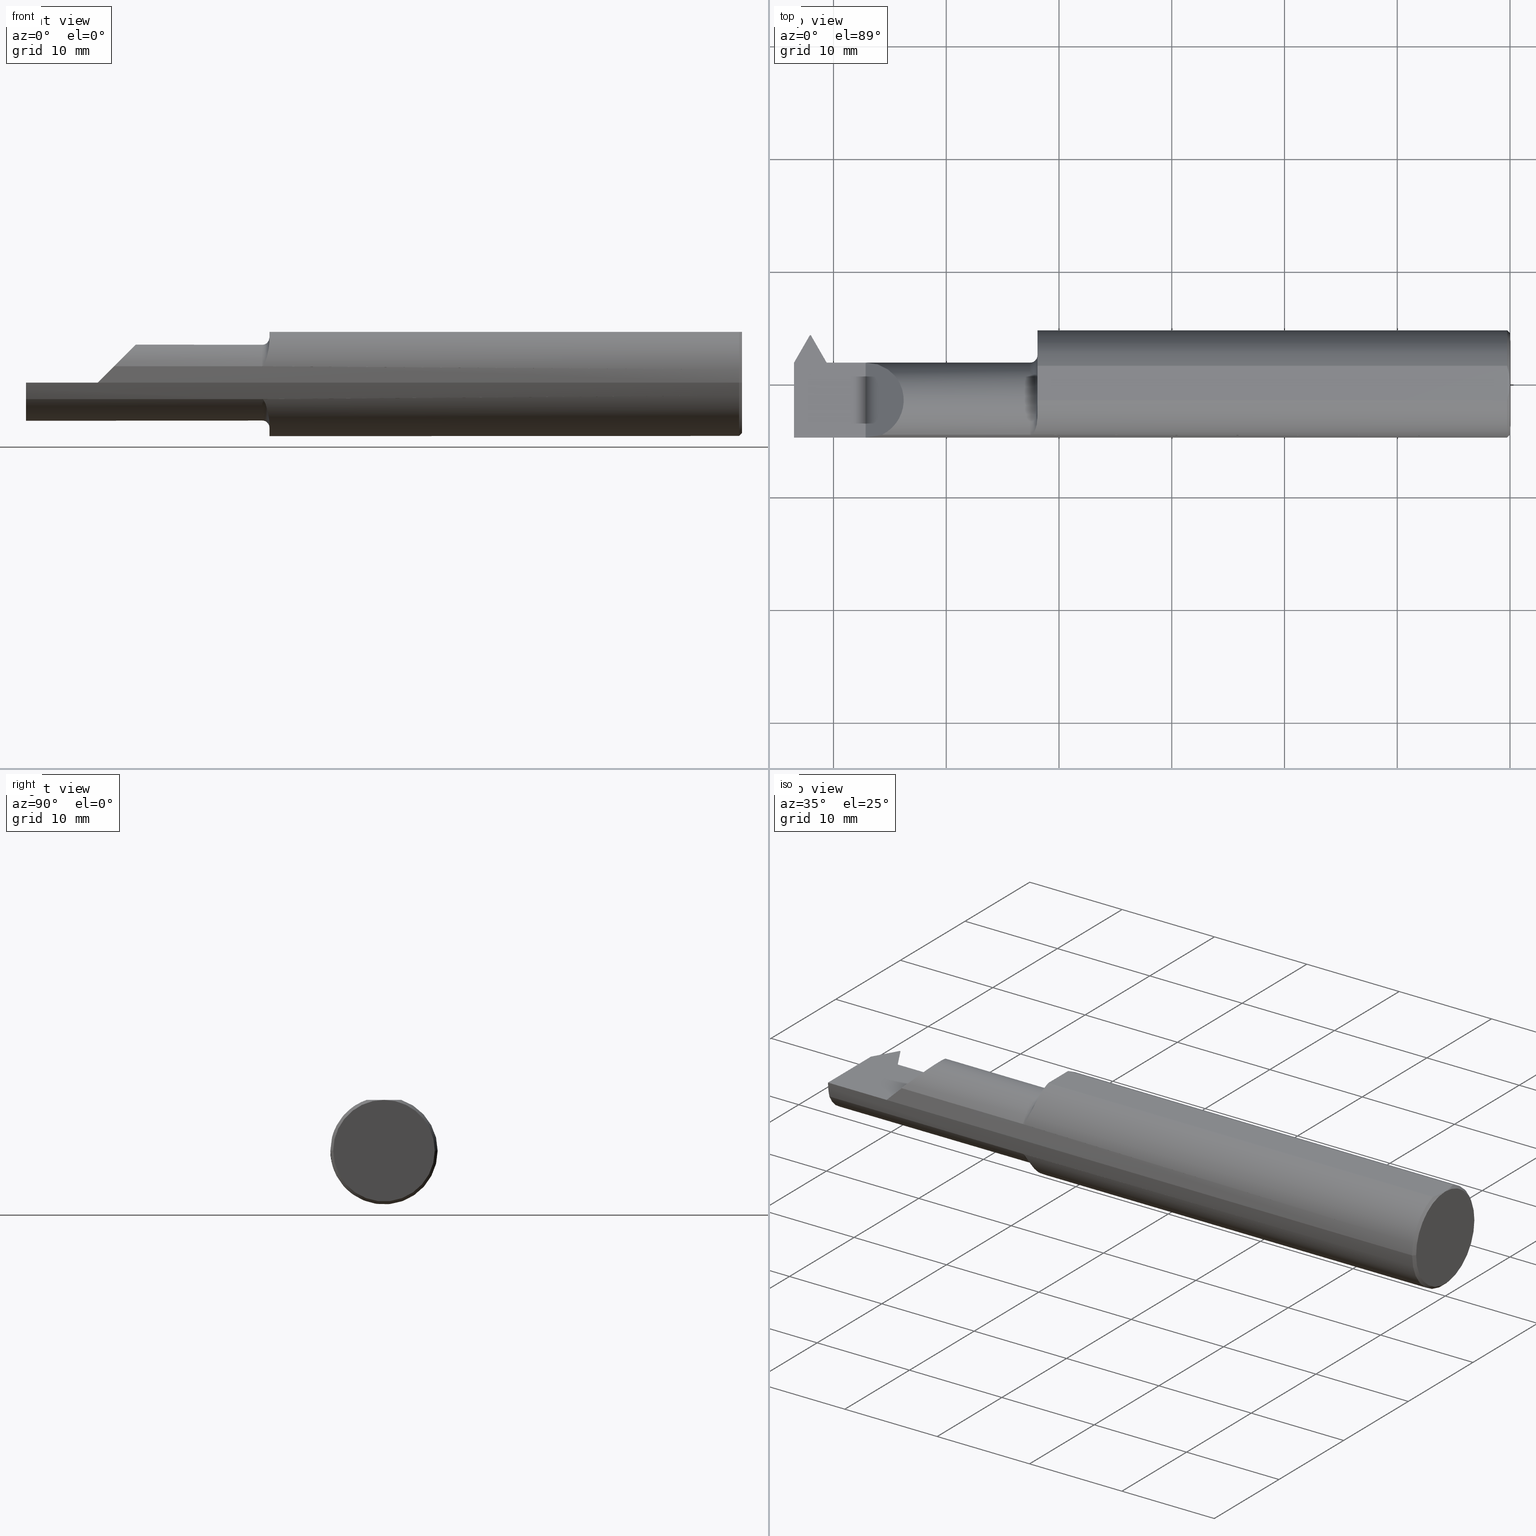
[diagram: canonical four-view strip — front | top / right | iso, engineering-drawing reading convention]
A machine part, canonical four-view strip (front | top / right | iso — engineering-drawing reading convention). The complete STEP part file that produces these views, byte-faithful:
ISO-10303-21;
HEADER;
FILE_DESCRIPTION (( 'STEP AP203' ),
    '1' );
FILE_NAME ('231903-LHTT360750.STEP',
    '2025-01-28T18:34:16',
    ( '' ),
    ( '' ),
    'SwSTEP 2.0',
    'SolidWorks 2024',
    '' );
FILE_SCHEMA (( 'CONFIG_CONTROL_DESIGN' ));
ENDSEC;

DATA;
#1 = AXIS2_PLACEMENT_3D ( 'NONE', #853, #170, #717 ) ;
#2 = DIRECTION ( 'NONE',  ( 0.000000000000000000, 1.000000000000000000, 0.000000000000000000 ) ) ;
#3 = CARTESIAN_POINT ( 'NONE',  ( -1.656840882823497063, -0.1605979928433032833, -0.09695168669191743527 ) ) ;
#4 = CARTESIAN_POINT ( 'NONE',  ( -2.290050427009581391, -0.01637394714821325398, -0.4473969938213963049 ) ) ;
#5 = ORIENTED_EDGE ( 'NONE', *, *, #230, .T. ) ;
#6 = EDGE_CURVE ( 'NONE', #163, #86, #373, .T. ) ;
#7 = DIRECTION ( 'NONE',  ( -1.224646799147352961E-16, 1.000000000000000000, 0.000000000000000000 ) ) ;
#8 = DIRECTION ( 'NONE',  ( 1.000000000000000000, 1.224646799147352961E-16, -0.000000000000000000 ) ) ;
#9 = LINE ( 'NONE', #700, #46 ) ;
#10 = ORIENTED_EDGE ( 'NONE', *, *, #363, .T. ) ;
#11 = ADVANCED_FACE ( 'NONE', ( #253 ), #309, .F. ) ;
#12 = AXIS2_PLACEMENT_3D ( 'NONE', #184, #442, #299 ) ;
#13 = DIRECTION ( 'NONE',  ( 1.459813011021671533E-17, -0.9396926207859104263, 0.3420201433256632728 ) ) ;
#14 = EDGE_LOOP ( 'NONE', ( #193, #456, #34, #715 ) ) ;
#15 = PERSON_AND_ORGANIZATION ( #500, #450 ) ;
#16 = CIRCLE ( 'NONE', #707, 0.1330000000000000349 ) ;
#17 = CC_DESIGN_PERSON_AND_ORGANIZATION_ASSIGNMENT ( #835, #501, ( #478 ) ) ;
#18 = AXIS2_PLACEMENT_3D ( 'NONE', #402, #536, #813 ) ;
#19 = FACE_OUTER_BOUND ( 'NONE', #383, .T. ) ;
#20 = VERTEX_POINT ( 'NONE', #459 ) ;
#21 = PERSON_AND_ORGANIZATION ( #500, #450 ) ;
#22 = EDGE_CURVE ( 'NONE', #290, #119, #410, .T. ) ;
#23 = DIRECTION ( 'NONE',  ( 1.000000000000000000, 1.224646799147352961E-16, -0.000000000000000000 ) ) ;
#24 = EDGE_LOOP ( 'NONE', ( #182, #69, #123, #401 ) ) ;
#25 = APPLICATION_CONTEXT ( 'configuration controlled 3d designs of mechanical parts and assemblies' ) ;
#26 = DATE_AND_TIME ( #826, #292 ) ;
#27 = CIRCLE ( 'NONE', #818, 0.1773500000000004795 ) ;
#28 = CARTESIAN_POINT ( 'NONE',  ( -2.250000000000000000, -0.1873499999999998222, 0.000000000000000000 ) ) ;
#29 = EDGE_LOOP ( 'NONE', ( #134, #816 ) ) ;
#30 = PERSON_AND_ORGANIZATION ( #500, #450 ) ;
#31 = DIRECTION ( 'NONE',  ( -6.842104469694077398E-17, 0.3768974211598647428, 0.9262550048032363037 ) ) ;
#32 = CARTESIAN_POINT ( 'NONE',  ( -2.370501519666968981, 0.06407714550917324725, -0.05196724008907802062 ) ) ;
#33 = VECTOR ( 'NONE', #23, 39.37007874015748143 ) ;
#34 = ORIENTED_EDGE ( 'NONE', *, *, #173, .F. ) ;
#35 = EDGE_CURVE ( 'NONE', #219, #681, #520, .T. ) ;
#36 = CARTESIAN_POINT ( 'NONE',  ( -2.381074374157796214, 0.04759084417664793260, -0.1330000000000000071 ) ) ;
#37 = CARTESIAN_POINT ( 'NONE',  ( -2.500000000000000000, 6.123233995736767268E-17, 0.000000000000000000 ) ) ;
#38 = ADVANCED_FACE ( 'NONE', ( #854 ), #244, .T. ) ;
#39 = PERSON_AND_ORGANIZATION ( #500, #450 ) ;
#40 = CARTESIAN_POINT ( 'NONE',  ( -2.441423267150904852, 0.1717766856931814967, 0.003095543500839076888 ) ) ;
#41 = LINE ( 'NONE', #303, #670 ) ;
#42 = ORIENTED_EDGE ( 'NONE', *, *, #194, .T. ) ;
#43 = CARTESIAN_POINT ( 'NONE',  ( -2.171911098287777663E-17, 0.1773500000000008403, 2.171911098287836519E-17 ) ) ;
#44 = EDGE_CURVE ( 'NONE', #678, #202, #799, .T. ) ;
#45 = CARTESIAN_POINT ( 'NONE',  ( -4.969808731120575398E-33, 3.199103279729614531E-16, 0.1773500000000000909 ) ) ;
#46 = VECTOR ( 'NONE', #632, 39.37007874015748143 ) ;
#47 = ORIENTED_EDGE ( 'NONE', *, *, #548, .T. ) ;
#48 = AXIS2_PLACEMENT_3D ( 'NONE', #399, #533, #186 ) ;
#49 = PERSON_AND_ORGANIZATION_ROLE ( 'design_supplier' ) ;
#50 = PLANE ( 'NONE',  #153 ) ;
#51 = CC_DESIGN_APPROVAL ( #694, ( #408 ) ) ;
#52 = ADVANCED_FACE ( 'NONE', ( #785 ), #648, .T. ) ;
#53 = CARTESIAN_POINT ( 'NONE',  ( -2.381074374157795326, 0.07464999999999999414, -6.905695551357038228E-18 ) ) ;
#54 = VERTEX_POINT ( 'NONE', #237 ) ;
#55 = CARTESIAN_POINT ( 'NONE',  ( -2.402519807398028728, 0.04616567407543323981, -0.1400049348434579954 ) ) ;
#56 = FACE_OUTER_BOUND ( 'NONE', #14, .T. ) ;
#57 = ORIENTED_EDGE ( 'NONE', *, *, #206, .F. ) ;
#58 = EDGE_CURVE ( 'NONE', #686, #336, #594, .T. ) ;
#59 = LINE ( 'NONE', #132, #540 ) ;
#60 = DIRECTION ( 'NONE',  ( 1.205580423470927479E-14, 0.7071067811865430208, 0.7071067811865520136 ) ) ;
#61 = VERTEX_POINT ( 'NONE', #576 ) ;
#62 = VECTOR ( 'NONE', #824, 39.37007874015748854 ) ;
#63 = ADVANCED_FACE ( 'NONE', ( #710 ), #175, .F. ) ;
#64 = CARTESIAN_POINT ( 'NONE',  ( -2.500000000000000000, 0.05417595023755433781, -0.05000000000000003747 ) ) ;
#65 = DIRECTION ( 'NONE',  ( 1.000000000000000000, -9.108622265535208572E-17, 0.000000000000000000 ) ) ;
#66 = VERTEX_POINT ( 'NONE', #171 ) ;
#67 = CARTESIAN_POINT ( 'NONE',  ( -2.377429102214748902, 0.07465000000000018843, -0.01791708402103016351 ) ) ;
#68 = CARTESIAN_POINT ( 'NONE',  ( -1.649999999999999023, -0.1312984737625739473, -0.1350514632126314507 ) ) ;
#69 = ORIENTED_EDGE ( 'NONE', *, *, #187, .T. ) ;
#70 = CIRCLE ( 'NONE', #565, 0.1873499999999999610 ) ;
#71 = DIRECTION ( 'NONE',  ( -1.000000000000000000, -1.224646799147319927E-16, 0.000000000000000000 ) ) ;
#72 = CARTESIAN_POINT ( 'NONE',  ( -1.675000000000000044, -0.05835000000000011705, 0.000000000000000000 ) ) ;
#73 = CARTESIAN_POINT ( 'NONE',  ( -2.500000000000000000, 0.07452118017992460930, 0.000000000000000000 ) ) ;
#74 = EDGE_LOOP ( 'NONE', ( #314, #626, #331 ) ) ;
#75 = VECTOR ( 'NONE', #335, 39.37007874015748143 ) ;
#76 = AXIS2_PLACEMENT_3D ( 'NONE', #709, #165, #638 ) ;
#77 = PLANE ( 'NONE',  #737 ) ;
#78 = DIRECTION ( 'NONE',  ( -1.000000000000000000, -1.224646799147319927E-16, 0.000000000000000000 ) ) ;
#79 = DIRECTION ( 'NONE',  ( 9.108622265535208572E-17, 1.000000000000000000, 1.608104540654733016E-16 ) ) ;
#80 = ADVANCED_FACE ( 'NONE', ( #56 ), #792, .T. ) ;
#81 = ORIENTED_EDGE ( 'NONE', *, *, #173, .T. ) ;
#82 = CARTESIAN_POINT ( 'NONE',  ( -2.300000000000000266, 0.1706499999999998851, 8.875653457662611807E-19 ) ) ;
#83 = ORIENTED_EDGE ( 'NONE', *, *, #398, .T. ) ;
#84 = APPLICATION_PROTOCOL_DEFINITION ( 'international standard', 'config_control_design', 1994, #747 ) ;
#85 = AXIS2_PLACEMENT_3D ( 'NONE', #605, #531, #197 ) ;
#86 = VERTEX_POINT ( 'NONE', #248 ) ;
#87 = ADVANCED_FACE ( 'NONE', ( #387 ), #862, .F. ) ;
#88 = APPROVAL_ROLE ( '' ) ;
#89 = LINE ( 'NONE', #353, #33 ) ;
#90 = ORIENTED_EDGE ( 'NONE', *, *, #250, .T. ) ;
#91 = APPROVAL_DATE_TIME ( #151, #694 ) ;
#92 = DIRECTION ( 'NONE',  ( 0.4999999999999897304, 0.8660254037844445918, 0.000000000000000000 ) ) ;
#93 = ADVANCED_FACE ( 'NONE', ( #511 ), #167, .F. ) ;
#94 = EDGE_LOOP ( 'NONE', ( #761, #42, #851 ) ) ;
#95 = DATE_TIME_ROLE ( 'creation_date' ) ;
#96 = DIRECTION ( 'NONE',  ( 0.000000000000000000, 1.000000000000000000, 0.000000000000000000 ) ) ;
#97 = AXIS2_PLACEMENT_3D ( 'NONE', #781, #106, #369 ) ;
#98 = DIRECTION ( 'NONE',  ( 0.8486396879976064733, -0.4899623523104046918, 0.1993679344171976064 ) ) ;
#99 = ORIENTED_EDGE ( 'NONE', *, *, #157, .T. ) ;
#100 = LINE ( 'NONE', #502, #62 ) ;
#101 = AXIS2_PLACEMENT_3D ( 'NONE', #82, #13, #680 ) ;
#102 = AXIS2_PLACEMENT_3D ( 'NONE', #601, #607, #868 ) ;
#103 = EDGE_LOOP ( 'NONE', ( #475, #644, #532, #364, #359 ) ) ;
#104 = EDGE_CURVE ( 'NONE', #296, #66, #41, .T. ) ;
#105 = LINE ( 'NONE', #642, #839 ) ;
#106 = DIRECTION ( 'NONE',  ( 6.692513345651035612E-15, -0.9799247046208295897, 0.1993679344171976342 ) ) ;
#107 = ORIENTED_EDGE ( 'NONE', *, *, #398, .F. ) ;
#108 = APPROVAL_STATUS ( 'not_yet_approved' ) ;
#109 = DIRECTION ( 'NONE',  ( 1.000000000000000000, 1.553500558300393113E-17, -0.000000000000000000 ) ) ;
#110 = DIRECTION ( 'NONE',  ( -9.108622265535208572E-17, -1.000000000000000000, 0.000000000000000000 ) ) ;
#111 = VERTEX_POINT ( 'NONE', #448 ) ;
#112 = DIRECTION ( 'NONE',  ( -1.000000000000000000, 9.108622265535208572E-17, -0.000000000000000000 ) ) ;
#113 = CARTESIAN_POINT ( 'NONE',  ( -2.500000000000000000, -0.1873499999999998500, 0.000000000000000000 ) ) ;
#114 = ORIENTED_EDGE ( 'NONE', *, *, #834, .T. ) ;
#115 = CIRCLE ( 'NONE', #169, 0.1873499999999999055 ) ;
#116 = DIRECTION ( 'NONE',  ( 1.000000000000000000, -9.108622265535208572E-17, 0.000000000000000000 ) ) ;
#117 = APPROVAL_PERSON_ORGANIZATION ( #444, #322, #437 ) ;
#118 = DIRECTION ( 'NONE',  ( 0.000000000000000000, 1.000000000000000000, 8.972136187338138840E-17 ) ) ;
#119 = VERTEX_POINT ( 'NONE', #718 ) ;
#120 = CARTESIAN_POINT ( 'NONE',  ( -2.381074374157795326, -0.05835000000000015175, -0.1330000000000000349 ) ) ;
#121 = DIRECTION ( 'NONE',  ( 1.000000000000000000, 1.224646799147352961E-16, -0.000000000000000000 ) ) ;
#122 = PRODUCT_DEFINITION_SHAPE ( 'NONE', 'NONE',  #733 ) ;
#123 = ORIENTED_EDGE ( 'NONE', *, *, #465, .T. ) ;
#124 = CIRCLE ( 'NONE', #618, 0.1873499999999999055 ) ;
#125 = CARTESIAN_POINT ( 'NONE',  ( -2.442739408347422980, 0.06945148828669119034, -0.1329999999999999793 ) ) ;
#126 = CARTESIAN_POINT ( 'NONE',  ( -1.650000000000000133, 1.653273178848926620E-16, 0.000000000000000000 ) ) ;
#127 = ORIENTED_EDGE ( 'NONE', *, *, #712, .F. ) ;
#128 = VECTOR ( 'NONE', #294, 39.37007874015748143 ) ;
#129 = CARTESIAN_POINT ( 'NONE',  ( -2.386074374157794775, 0.07464999999999998026, 0.000000000000000000 ) ) ;
#130 = DIRECTION ( 'NONE',  ( -1.000000000000000000, -1.224646799147319927E-16, 0.000000000000000000 ) ) ;
#131 = ORIENTED_EDGE ( 'NONE', *, *, #426, .T. ) ;
#132 = CARTESIAN_POINT ( 'NONE',  ( -2.381947536149771061, 1.001585846846490879, 0.8871084618176600101 ) ) ;
#133 = CARTESIAN_POINT ( 'NONE',  ( -2.442739408347421648, 0.1524514882866913057, -0.04999999999999878153 ) ) ;
#134 = ORIENTED_EDGE ( 'NONE', *, *, #770, .T. ) ;
#135 = AXIS2_PLACEMENT_3D ( 'NONE', #728, #714, #586 ) ;
#136 = EDGE_CURVE ( 'NONE', #587, #202, #550, .T. ) ;
#137 = CARTESIAN_POINT ( 'NONE',  ( 2.171911098287777663E-17, -0.1773500000000000909, 0.000000000000000000 ) ) ;
#138 = CARTESIAN_POINT ( 'NONE',  ( -2.381947536149771061, 0.06447738502881514289, -0.05000000000000000971 ) ) ;
#139 = ORIENTED_EDGE ( 'NONE', *, *, #160, .T. ) ;
#140 = CARTESIAN_POINT ( 'NONE',  ( -1.652207105173744139, -0.1438831799117014365, 0.1203810775392139126 ) ) ;
#141 = CARTESIAN_POINT ( 'NONE',  ( -2.381074374157795326, 0.06945148828669117647, -0.1330000000000000071 ) ) ;
#142 = VERTEX_POINT ( 'NONE', #138 ) ;
#143 = LINE ( 'NONE', #233, #768 ) ;
#144 = EDGE_LOOP ( 'NONE', ( #567, #198, #863, #777, #417, #657, #498, #168, #107 ) ) ;
#145 = EDGE_CURVE ( 'NONE', #858, #681, #332, .T. ) ;
#146 = CARTESIAN_POINT ( 'NONE',  ( -1.650000000000000133, 0.06039039658753678902, 0.1773500000000000909 ) ) ;
#147 = PLANE ( 'NONE',  #101 ) ;
#148 = PLANE ( 'NONE',  #436 ) ;
#149 = EDGE_LOOP ( 'NONE', ( #224, #547, #266, #325 ) ) ;
#150 = CONICAL_SURFACE ( 'NONE', #557, 0.1773500000000004795, 0.7853981633974670418 ) ;
#151 = DATE_AND_TIME ( #630, #693 ) ;
#152 =( GEOMETRIC_REPRESENTATION_CONTEXT ( 3 ) GLOBAL_UNCERTAINTY_ASSIGNED_CONTEXT ( ( #374 ) ) GLOBAL_UNIT_ASSIGNED_CONTEXT ( ( #697, #488, #427 ) ) REPRESENTATION_CONTEXT ( 'NONE', 'WORKASPACE' ) );
#153 = AXIS2_PLACEMENT_3D ( 'NONE', #179, #575, #654 ) ;
#154 = DIRECTION ( 'NONE',  ( 0.000000000000000000, 0.000000000000000000, -1.000000000000000000 ) ) ;
#155 = EDGE_LOOP ( 'NONE', ( #809, #350, #738, #820 ) ) ;
#156 = CARTESIAN_POINT ( 'NONE',  ( -1.673764212023046483, -0.1783697086546788269, 0.05730854678357311105 ) ) ;
#157 = EDGE_CURVE ( 'NONE', #599, #858, #592, .T. ) ;
#158 = CARTESIAN_POINT ( 'NONE',  ( -2.391947536149770848, 1.001585846846490879, 0.8871084618176600101 ) ) ;
#159 = ORIENTED_EDGE ( 'NONE', *, *, #22, .F. ) ;
#160 = EDGE_CURVE ( 'NONE', #66, #587, #534, .T. ) ;
#161 = AXIS2_PLACEMENT_3D ( 'NONE', #655, #8, #273 ) ;
#162 = LINE ( 'NONE', #434, #875 ) ;
#163 = VERTEX_POINT ( 'NONE', #192 ) ;
#164 = SHAPE_DEFINITION_REPRESENTATION ( #122, #629 ) ;
#165 = DIRECTION ( 'NONE',  ( 1.098490779351302333E-17, -0.7071067811865521247, 0.7071067811865430208 ) ) ;
#166 = VECTOR ( 'NONE', #555, 39.37007874015748143 ) ;
#167 = PLANE ( 'NONE',  #97 ) ;
#168 = ORIENTED_EDGE ( 'NONE', *, *, #610, .F. ) ;
#169 = AXIS2_PLACEMENT_3D ( 'NONE', #407, #477, #467 ) ;
#170 = DIRECTION ( 'NONE',  ( 1.000000000000000000, -9.108622265535208572E-17, 0.000000000000000000 ) ) ;
#171 = CARTESIAN_POINT ( 'NONE',  ( -2.443260591652577585, 0.1524514882866901122, -0.05000000000000033584 ) ) ;
#172 = ORIENTED_EDGE ( 'NONE', *, *, #760, .F. ) ;
#173 = EDGE_CURVE ( 'NONE', #833, #874, #598, .T. ) ;
#174 = LINE ( 'NONE', #584, #646 ) ;
#175 = TOROIDAL_SURFACE ( 'NONE', #405, 0.1580000000000003346, 0.02499999999999993894 ) ;
#176 = DIRECTION ( 'NONE',  ( 0.9799247046208295897, -8.925763983057300384E-17, 0.1993679344171976342 ) ) ;
#177 = ORIENTED_EDGE ( 'NONE', *, *, #356, .F. ) ;
#178 = EDGE_CURVE ( 'NONE', #833, #804, #124, .T. ) ;
#179 = CARTESIAN_POINT ( 'NONE',  ( -2.443000000000000060, 1.090011308086659358, 0.8871084618176600101 ) ) ;
#180 = DIRECTION ( 'NONE',  ( -1.000000000000000000, 0.000000000000000000, -0.000000000000000000 ) ) ;
#181 = DESIGN_CONTEXT ( 'detailed design', #25, 'design' ) ;
#182 = ORIENTED_EDGE ( 'NONE', *, *, #610, .T. ) ;
#183 = DIRECTION ( 'NONE',  ( -0.02328694095509172349, 0.3419273951315134341, 0.9394377972167885504 ) ) ;
#184 = CARTESIAN_POINT ( 'NONE',  ( -2.500000000000000000, 0.2123500000000002053, 0.1773500000000001187 ) ) ;
#185 = ORIENTED_EDGE ( 'NONE', *, *, #211, .F. ) ;
#186 = DIRECTION ( 'NONE',  ( 0.000000000000000000, 1.000000000000000000, 0.000000000000000000 ) ) ;
#187 = EDGE_CURVE ( 'NONE', #743, #296, #268, .T. ) ;
#188 = CARTESIAN_POINT ( 'NONE',  ( -1.650000000000000133, -0.1160303770344974783, 0.1470951192431561860 ) ) ;
#189 = ORIENTED_EDGE ( 'NONE', *, *, #706, .T. ) ;
#190 = AXIS2_PLACEMENT_3D ( 'NONE', #126, #65, #873 ) ;
#191 = FACE_OUTER_BOUND ( 'NONE', #155, .T. ) ;
#192 = CARTESIAN_POINT ( 'NONE',  ( -2.500000000000000000, -0.1873499999999998777, 0.000000000000000000 ) ) ;
#193 = ORIENTED_EDGE ( 'NONE', *, *, #313, .F. ) ;
#194 = EDGE_CURVE ( 'NONE', #590, #838, #27, .T. ) ;
#195 = CIRCLE ( 'NONE', #690, 0.1773500000000004795 ) ;
#196 = DIRECTION ( 'NONE',  ( 0.5000000000000034417, -0.8660254037844365982, 0.000000000000000000 ) ) ;
#197 = DIRECTION ( 'NONE',  ( 9.108622265535208572E-17, 1.000000000000000000, 0.000000000000000000 ) ) ;
#198 = ORIENTED_EDGE ( 'NONE', *, *, #494, .T. ) ;
#199 = EDGE_CURVE ( 'NONE', #804, #518, #330, .T. ) ;
#200 = DIRECTION ( 'NONE',  ( -1.253099476677463101E-16, 1.000000000000000000, 0.000000000000000000 ) ) ;
#201 = CARTESIAN_POINT ( 'NONE',  ( -2.500000000000000000, -0.02882404976244724512, -0.1330000000000001181 ) ) ;
#202 = VERTEX_POINT ( 'NONE', #201 ) ;
#203 = AXIS2_PLACEMENT_3D ( 'NONE', #857, #580, #110 ) ;
#204 = ADVANCED_FACE ( 'NONE', ( #814 ), #463, .F. ) ;
#205 = CARTESIAN_POINT ( 'NONE',  ( -1.650000000000000133, -0.1160303770344974783, 0.1470951192431561860 ) ) ;
#206 = EDGE_CURVE ( 'NONE', #838, #119, #653, .T. ) ;
#207 = CARTESIAN_POINT ( 'NONE',  ( -1.675000000000000044, -0.1783697086546690014, -0.05730854678360382953 ) ) ;
#208 = FACE_OUTER_BOUND ( 'NONE', #304, .T. ) ;
#209 = ORIENTED_EDGE ( 'NONE', *, *, #386, .T. ) ;
#210 = VECTOR ( 'NONE', #516, 39.37007874015748143 ) ;
#211 = EDGE_CURVE ( 'NONE', #344, #269, #545, .T. ) ;
#212 = LINE ( 'NONE', #631, #837 ) ;
#213 = CARTESIAN_POINT ( 'NONE',  ( -0.0009167640511158918265, 0.02059964124962103751, 0.1773500000000000909 ) ) ;
#214 = ADVANCED_FACE ( 'NONE', ( #754 ), #328, .T. ) ;
#215 = VERTEX_POINT ( 'NONE', #802 ) ;
#216 = CALENDAR_DATE ( 2025, 28, 1 ) ;
#217 = PLANE ( 'NONE',  #685 ) ;
#218 = FACE_OUTER_BOUND ( 'NONE', #800, .T. ) ;
#219 = VERTEX_POINT ( 'NONE', #188 ) ;
#220 = VECTOR ( 'NONE', #409, 39.37007874015748143 ) ;
#221 = APPROVAL_ROLE ( '' ) ;
#222 = DIRECTION ( 'NONE',  ( 0.000000000000000000, 1.000000000000000000, 8.972136187338138840E-17 ) ) ;
#223 = FACE_OUTER_BOUND ( 'NONE', #552, .T. ) ;
#224 = ORIENTED_EDGE ( 'NONE', *, *, #187, .F. ) ;
#225 = VECTOR ( 'NONE', #617, 39.37007874015748143 ) ;
#226 = PERSON_AND_ORGANIZATION ( #500, #450 ) ;
#227 = AXIS2_PLACEMENT_3D ( 'NONE', #389, #109, #856 ) ;
#228 = CARTESIAN_POINT ( 'NONE',  ( -0.006852151730285416242, 0.05062478141268286075, 0.1773500000000000909 ) ) ;
#229 = VERTEX_POINT ( 'NONE', #731 ) ;
#230 = EDGE_CURVE ( 'NONE', #681, #649, #577, .T. ) ;
#231 = PERSON_AND_ORGANIZATION ( #500, #450 ) ;
#232 = DIRECTION ( 'NONE',  ( 1.000000000000000000, 1.224646799147352961E-16, -0.000000000000000000 ) ) ;
#233 = CARTESIAN_POINT ( 'NONE',  ( -5.098311318176956023E-16, 0.07465000000001625891, 0.000000000000000000 ) ) ;
#234 = ORIENTED_EDGE ( 'NONE', *, *, #452, .F. ) ;
#235 = DIRECTION ( 'NONE',  ( 1.224646799147352961E-16, -1.000000000000000000, 0.000000000000000000 ) ) ;
#236 = CC_DESIGN_PERSON_AND_ORGANIZATION_ASSIGNMENT ( #30, #569, ( #408 ) ) ;
#237 = CARTESIAN_POINT ( 'NONE',  ( -2.391947536149770848, -0.01852261497118630126, -0.1329999999999999793 ) ) ;
#238 = CARTESIAN_POINT ( 'NONE',  ( -2.028037187078897574, -0.1783697086546688348, -0.05730854678360366994 ) ) ;
#239 = ADVANCED_FACE ( 'NONE', ( #324 ), #217, .F. ) ;
#240 = VECTOR ( 'NONE', #393, 39.37007874015748143 ) ;
#241 = CARTESIAN_POINT ( 'NONE',  ( -0.006863038267947816837, -0.05065855487579175309, 0.1773500000000001187 ) ) ;
#242 = VERTEX_POINT ( 'NONE', #699 ) ;
#243 = CYLINDRICAL_SURFACE ( 'NONE', #379, 0.1330000000000002292 ) ;
#244 = PLANE ( 'NONE',  #203 ) ;
#245 = ORIENTED_EDGE ( 'NONE', *, *, #574, .T. ) ;
#246 = CC_DESIGN_SECURITY_CLASSIFICATION ( #504, ( #408 ) ) ;
#247 = DIRECTION ( 'NONE',  ( -0.7071067811865343611, 0.7071067811865606734, 8.659560562355095561E-17 ) ) ;
#248 = CARTESIAN_POINT ( 'NONE',  ( -2.250000000000000000, -0.1873499999999998222, 0.000000000000000000 ) ) ;
#249 = ORIENTED_EDGE ( 'NONE', *, *, #519, .F. ) ;
#250 = EDGE_CURVE ( 'NONE', #163, #20, #70, .T. ) ;
#251 = DATE_AND_TIME ( #451, #543 ) ;
#252 = CARTESIAN_POINT ( 'NONE',  ( -1.650000000000000133, 0.1873500000000000998, 0.000000000000000000 ) ) ;
#253 = FACE_OUTER_BOUND ( 'NONE', #29, .T. ) ;
#254 = ORIENTED_EDGE ( 'NONE', *, *, #867, .T. ) ;
#255 = EDGE_CURVE ( 'NONE', #686, #215, #16, .T. ) ;
#256 = CARTESIAN_POINT ( 'NONE',  ( 0.000000000000000000, 3.673940397442058882E-16, 0.000000000000000000 ) ) ;
#257 = DIRECTION ( 'NONE',  ( -1.253099476677463101E-16, 1.000000000000000000, 8.881784197001252323E-16 ) ) ;
#258 = ORIENTED_EDGE ( 'NONE', *, *, #600, .T. ) ;
#259 = EDGE_CURVE ( 'NONE', #142, #229, #361, .T. ) ;
#260 = CARTESIAN_POINT ( 'NONE',  ( -1.650000000000000133, -0.1160303770351312075, -0.1470951192429076904 ) ) ;
#261 = EDGE_CURVE ( 'NONE', #750, #344, #212, .T. ) ;
#262 = ORIENTED_EDGE ( 'NONE', *, *, #337, .F. ) ;
#263 = CYLINDRICAL_SURFACE ( 'NONE', #48, 0.1873499999999999055 ) ;
#264 = CARTESIAN_POINT ( 'NONE',  ( -1.658867519642199362, -0.1652587220708470472, -0.08874743406640543675 ) ) ;
#265 = EDGE_CURVE ( 'NONE', #440, #686, #762, .T. ) ;
#266 = ORIENTED_EDGE ( 'NONE', *, *, #160, .F. ) ;
#267 = CARTESIAN_POINT ( 'NONE',  ( -1.757231382422083765, -1.014538011669857687, 0.000000000000000000 ) ) ;
#268 = LINE ( 'NONE', #133, #462 ) ;
#269 = VERTEX_POINT ( 'NONE', #414 ) ;
#270 = ADVANCED_FACE ( 'NONE', ( #570 ), #147, .F. ) ;
#271 = MANIFOLD_SOLID_BREP ( 'Cut-Sweep1', #831 ) ;
#272 = CARTESIAN_POINT ( 'NONE',  ( -1.024723209186555973E-17, 0.1773500000000008403, 2.233143438245201271E-17 ) ) ;
#273 = DIRECTION ( 'NONE',  ( -1.224646799147352961E-16, 1.000000000000000000, 0.000000000000000000 ) ) ;
#274 = CARTESIAN_POINT ( 'NONE',  ( -2.250000000000000000, 0.07465000000000018843, 0.000000000000000000 ) ) ;
#275 = EDGE_LOOP ( 'NONE', ( #317, #354, #388, #245 ) ) ;
#276 = VECTOR ( 'NONE', #865, 39.37007874015748143 ) ;
#277 = APPROVAL_STATUS ( 'not_yet_approved' ) ;
#278 = LINE ( 'NONE', #758, #468 ) ;
#279 = LINE ( 'NONE', #4, #412 ) ;
#280 = ORIENTED_EDGE ( 'NONE', *, *, #574, .F. ) ;
#281 = VECTOR ( 'NONE', #235, 39.37007874015748143 ) ;
#282 = CIRCLE ( 'NONE', #227, 0.1330000000000000071 ) ;
#283 = PERSON_AND_ORGANIZATION_ROLE ( 'creator' ) ;
#284 = DIRECTION ( 'NONE',  ( 0.000000000000000000, 0.7071067811865534569, 0.7071067811865415775 ) ) ;
#285 = ORIENTED_EDGE ( 'NONE', *, *, #426, .F. ) ;
#286 = MECHANICAL_CONTEXT ( 'NONE', #747, 'mechanical' ) ;
#287 = DIRECTION ( 'NONE',  ( 0.000000000000000000, -1.000000000000000000, -8.972136187338138840E-17 ) ) ;
#288 = ORIENTED_EDGE ( 'NONE', *, *, #845, .F. ) ;
#289 = DIRECTION ( 'NONE',  ( 0.000000000000000000, 0.7071067811865415775, -0.7071067811865534569 ) ) ;
#290 = VERTEX_POINT ( 'NONE', #422 ) ;
#291 = EDGE_CURVE ( 'NONE', #215, #336, #562, .T. ) ;
#292 = LOCAL_TIME ( 10, 34, 16.00000000000000000, #355 ) ;
#293 = VECTOR ( 'NONE', #650, 39.37007874015748143 ) ;
#294 = DIRECTION ( 'NONE',  ( -1.000000000000000000, 9.108622265535208572E-17, -0.000000000000000000 ) ) ;
#295 = CARTESIAN_POINT ( 'NONE',  ( -2.500000000000000000, 6.123233995736767268E-17, 0.000000000000000000 ) ) ;
#296 = VERTEX_POINT ( 'NONE', #343 ) ;
#297 = COORDINATED_UNIVERSAL_TIME_OFFSET ( 8, 0, .BEHIND. ) ;
#298 = CARTESIAN_POINT ( 'NONE',  ( 3.319098987389115832E-17, -0.1773500000000000909, 0.000000000000000000 ) ) ;
#299 = DIRECTION ( 'NONE',  ( 0.000000000000000000, 1.000000000000000000, 1.608104540654733016E-16 ) ) ;
#300 = ORIENTED_EDGE ( 'NONE', *, *, #58, .T. ) ;
#301 = EDGE_CURVE ( 'NONE', #750, #202, #496, .T. ) ;
#302 = DIRECTION ( 'NONE',  ( 0.000000000000000000, -0.7071067811865534569, -0.7071067811865415775 ) ) ;
#303 = CARTESIAN_POINT ( 'NONE',  ( -2.300000000000000266, 0.1524514882866901122, -0.05000000000000000278 ) ) ;
#304 = EDGE_LOOP ( 'NONE', ( #127, #556, #159, #769 ) ) ;
#305 = CALENDAR_DATE ( 2025, 28, 1 ) ;
#306 = DIRECTION ( 'NONE',  ( 0.1143501000964208258, 0.1980601832175902244, 0.9734969021171835379 ) ) ;
#307 = VECTOR ( 'NONE', #196, 39.37007874015748143 ) ;
#308 = AXIS2_PLACEMENT_3D ( 'NONE', #461, #319, #200 ) ;
#309 = PLANE ( 'NONE',  #860 ) ;
#310 = ORIENTED_EDGE ( 'NONE', *, *, #682, .F. ) ;
#311 = LINE ( 'NONE', #40, #720 ) ;
#312 = DIRECTION ( 'NONE',  ( 0.000000000000000000, 1.000000000000000000, 0.000000000000000000 ) ) ;
#313 = EDGE_CURVE ( 'NONE', #649, #804, #278, .T. ) ;
#314 = ORIENTED_EDGE ( 'NONE', *, *, #58, .F. ) ;
#315 = DIRECTION ( 'NONE',  ( 0.000000000000000000, -1.000000000000000000, 0.000000000000000000 ) ) ;
#316 = CARTESIAN_POINT ( 'NONE',  ( 5.171903141325568845E-16, -0.01026980879711894036, 0.1773500000000000909 ) ) ;
#317 = ORIENTED_EDGE ( 'NONE', *, *, #104, .T. ) ;
#318 = EDGE_CURVE ( 'NONE', #599, #424, #807, .T. ) ;
#319 = DIRECTION ( 'NONE',  ( -1.000000000000000000, -1.224646799147319927E-16, 0.000000000000000000 ) ) ;
#320 = CARTESIAN_POINT ( 'NONE',  ( 1.147187889101280084E-17, 3.673940397442058882E-16, 0.000000000000000000 ) ) ;
#321 = ORIENTED_EDGE ( 'NONE', *, *, #265, .T. ) ;
#322 = APPROVAL ( #108, 'UNSPECIFIED' ) ;
#323 = DIRECTION ( 'NONE',  ( 1.000000000000000000, 1.224646799147352961E-16, -0.000000000000000000 ) ) ;
#324 = FACE_OUTER_BOUND ( 'NONE', #705, .T. ) ;
#325 = ORIENTED_EDGE ( 'NONE', *, *, #104, .F. ) ;
#326 = ADVANCED_FACE ( 'NONE', ( #208 ), #150, .T. ) ;
#327 = DIRECTION ( 'NONE',  ( 1.224646799147319927E-16, -1.000000000000000000, 0.000000000000000000 ) ) ;
#328 = PLANE ( 'NONE',  #85 ) ;
#329 = LINE ( 'NONE', #474, #675 ) ;
#330 = CIRCLE ( 'NONE', #551, 0.1873499999999999055 ) ;
#331 = ORIENTED_EDGE ( 'NONE', *, *, #291, .T. ) ;
#332 = B_SPLINE_CURVE_WITH_KNOTS ( 'NONE', 3,
 ( #207, #469, #400, #676, #538, #391, #608, #614, #870, #264, #3, #602, #68, #260 ),
 .UNSPECIFIED., .F., .F.,
 ( 4, 2, 2, 2, 2, 2, 4 ),
 ( 1.965724206508649174E-07, 9.384097494424061036E-05, 0.0001874853774678303603, 0.0003747741825150096976, 0.0007493517926093754737, 0.001498507012798113965, 0.002996817453175587911 ),
 .UNSPECIFIED. ) ;
#333 = FACE_OUTER_BOUND ( 'NONE', #595, .T. ) ;
#334 = DIRECTION ( 'NONE',  ( -1.253099476677463101E-16, 1.000000000000000000, 0.000000000000000000 ) ) ;
#335 = DIRECTION ( 'NONE',  ( 1.000000000000000000, 1.553500558300392805E-17, 0.000000000000000000 ) ) ;
#336 = VERTEX_POINT ( 'NONE', #666 ) ;
#337 = EDGE_CURVE ( 'NONE', #435, #874, #329, .T. ) ;
#338 = CARTESIAN_POINT ( 'NONE',  ( 1.147187889101284552E-17, 1.404899976408496659E-33, 0.000000000000000000 ) ) ;
#339 = CARTESIAN_POINT ( 'NONE',  ( -2.250000000000000000, -0.2500000000000000000, 0.000000000000000000 ) ) ;
#340 = DIRECTION ( 'NONE',  ( -1.000000000000000000, 9.108622265535208572E-17, -0.000000000000000000 ) ) ;
#341 = ORIENTED_EDGE ( 'NONE', *, *, #199, .T. ) ;
#342 = DIRECTION ( 'NONE',  ( 1.000000000000000000, 0.000000000000000000, 0.000000000000000000 ) ) ;
#343 = CARTESIAN_POINT ( 'NONE',  ( -2.442739408347421648, 0.1524514882866904453, -0.04999999999999965583 ) ) ;
#344 = VERTEX_POINT ( 'NONE', #73 ) ;
#345 = EDGE_CURVE ( 'NONE', #587, #743, #755, .T. ) ;
#346 = AXIS2_PLACEMENT_3D ( 'NONE', #72, #403, #479 ) ;
#347 = CARTESIAN_POINT ( 'NONE',  ( 0.000000000000000000, 0.000000000000000000, 0.000000000000000000 ) ) ;
#348 = CARTESIAN_POINT ( 'NONE',  ( -2.381947536149771061, 0.07465000000000063252, 3.178167241088818001E-15 ) ) ;
#349 = CARTESIAN_POINT ( 'NONE',  ( -1.650000000000000133, -0.06039039658753631717, 0.1773500000000000909 ) ) ;
#350 = ORIENTED_EDGE ( 'NONE', *, *, #194, .F. ) ;
#351 = VECTOR ( 'NONE', #513, 39.37007874015748854 ) ;
#352 = CARTESIAN_POINT ( 'NONE',  ( -2.381074374157795326, -0.05835000000000004766, 0.000000000000000000 ) ) ;
#353 = CARTESIAN_POINT ( 'NONE',  ( -2.500000000000000000, -0.1873499999999998500, 2.294375778202565098E-17 ) ) ;
#354 = ORIENTED_EDGE ( 'NONE', *, *, #668, .T. ) ;
#355 = COORDINATED_UNIVERSAL_TIME_OFFSET ( 8, 0, .BEHIND. ) ;
#356 = EDGE_CURVE ( 'NONE', #86, #828, #615, .T. ) ;
#357 = CARTESIAN_POINT ( 'NONE',  ( -2.500000000000000000, 0.9912844120552299909, 0.8871084618176600101 ) ) ;
#358 = LINE ( 'NONE', #36, #166 ) ;
#359 = ORIENTED_EDGE ( 'NONE', *, *, #230, .F. ) ;
#360 = CARTESIAN_POINT ( 'NONE',  ( -1.664343418362526306, -0.1730952584121027704, 0.07182162584506067426 ) ) ;
#361 = LINE ( 'NONE', #348, #225 ) ;
#362 = FACE_OUTER_BOUND ( 'NONE', #560, .T. ) ;
#363 = EDGE_CURVE ( 'NONE', #471, #828, #609, .T. ) ;
#364 = ORIENTED_EDGE ( 'NONE', *, *, #558, .F. ) ;
#365 = PLANE ( 'NONE',  #377 ) ;
#366 = ORIENTED_EDGE ( 'NONE', *, *, #367, .F. ) ;
#367 = EDGE_CURVE ( 'NONE', #440, #471, #279, .T. ) ;
#368 = LINE ( 'NONE', #120, #210 ) ;
#369 = DIRECTION ( 'NONE',  ( 0.000000000000000000, -0.1993679344171976064, -0.9799247046208294787 ) ) ;
#370 = EDGE_LOOP ( 'NONE', ( #528, #466, #764, #131, #366, #321, #300, #855 ) ) ;
#371 = COORDINATED_UNIVERSAL_TIME_OFFSET ( 8, 0, .BEHIND. ) ;
#372 = LINE ( 'NONE', #846, #281 ) ;
#373 = LINE ( 'NONE', #113, #703 ) ;
#374 = UNCERTAINTY_MEASURE_WITH_UNIT (LENGTH_MEASURE( 1.000000000000000082E-05 ), #697, 'distance_accuracy_value', 'NONE');
#375 = ORIENTED_EDGE ( 'NONE', *, *, #136, .T. ) ;
#376 = AXIS2_PLACEMENT_3D ( 'NONE', #347, #679, #342 ) ;
#377 = AXIS2_PLACEMENT_3D ( 'NONE', #158, #289, #284 ) ;
#378 = CARTESIAN_POINT ( 'NONE',  ( 6.090379736355561173E-18, 0.06447738502883540446, -0.04999999999997970651 ) ) ;
#379 = AXIS2_PLACEMENT_3D ( 'NONE', #441, #112, #315 ) ;
#380 = CC_DESIGN_DATE_AND_TIME_ASSIGNMENT ( #771, #95, ( #733 ) ) ;
#381 = CIRCLE ( 'NONE', #308, 0.1873499999999999055 ) ;
#382 = CARTESIAN_POINT ( 'NONE',  ( -0.009999999999999073866, -0.06039039658753610901, 0.1773500000000000909 ) ) ;
#383 = EDGE_LOOP ( 'NONE', ( #788, #481, #711, #564 ) ) ;
#384 = LOCAL_TIME ( 10, 34, 16.00000000000000000, #371 ) ;
#385 = LINE ( 'NONE', #378, #293 ) ;
#386 = EDGE_CURVE ( 'NONE', #828, #424, #702, .T. ) ;
#387 = FACE_OUTER_BOUND ( 'NONE', #812, .T. ) ;
#388 = ORIENTED_EDGE ( 'NONE', *, *, #585, .T. ) ;
#389 = CARTESIAN_POINT ( 'NONE',  ( -2.500000000000000000, -0.05835000000000006154, 0.000000000000000000 ) ) ;
#390 = VECTOR ( 'NONE', #749, 39.37007874015748854 ) ;
#391 = CARTESIAN_POINT ( 'NONE',  ( -1.668162645443746150, -0.1762760481395237444, -0.06349063590883773089 ) ) ;
#392 = EDGE_LOOP ( 'NONE', ( #732, #844, #866, #616 ) ) ;
#393 = DIRECTION ( 'NONE',  ( -0.7071067811865341390, -0.7071067811865608954, 0.000000000000000000 ) ) ;
#394 = CARTESIAN_POINT ( 'NONE',  ( -2.483053705027748137, 0.0005277941295431770163, -0.1330000000000000349 ) ) ;
#395 = DIRECTION ( 'NONE',  ( 1.000000000000000000, -9.108622265535208572E-17, 0.000000000000000000 ) ) ;
#396 = CIRCLE ( 'NONE', #1, 0.1873499999999999055 ) ;
#397 = EDGE_LOOP ( 'NONE', ( #83, #756, #258, #689 ) ) ;
#398 = EDGE_CURVE ( 'NONE', #242, #54, #9, .T. ) ;
#399 = CARTESIAN_POINT ( 'NONE',  ( -2.500000000000000000, 6.123233995736767268E-17, 0.000000000000000000 ) ) ;
#400 = CARTESIAN_POINT ( 'NONE',  ( -1.672632702519554204, -0.1781504652642076914, -0.05799271583144688380 ) ) ;
#401 = ORIENTED_EDGE ( 'NONE', *, *, #641, .T. ) ;
#402 = CARTESIAN_POINT ( 'NONE',  ( -2.381074374157795326, -0.05835000000000018644, -0.1330000000000000349 ) ) ;
#403 = DIRECTION ( 'NONE',  ( -1.000000000000000000, 9.108622265535208572E-17, -0.000000000000000000 ) ) ;
#404 = DIRECTION ( 'NONE',  ( -1.000000000000000000, -1.224646799147319927E-16, 0.000000000000000000 ) ) ;
#405 = AXIS2_PLACEMENT_3D ( 'NONE', #527, #724, #439 ) ;
#406 = ORIENTED_EDGE ( 'NONE', *, *, #318, .T. ) ;
#407 = CARTESIAN_POINT ( 'NONE',  ( -1.650000000000000133, 1.653273178848926620E-16, 0.000000000000000000 ) ) ;
#408 = PRODUCT_DEFINITION_FORMATION_WITH_SPECIFIED_SOURCE ( 'ANY', '', #478, .NOT_KNOWN. ) ;
#409 = DIRECTION ( 'NONE',  ( 1.206740637347345323E-14, -0.7071067811865430208, -0.7071067811865520136 ) ) ;
#410 = B_SPLINE_CURVE_WITH_KNOTS ( 'NONE', 3,
 ( #382, #241, #636, #589, #316, #45 ),
 .UNSPECIFIED., .F., .F.,
 ( 4, 2, 4 ),
 ( 0.001950265285394878591, 0.002725445821525866816, 0.003500626357656855259 ),
 .UNSPECIFIED. ) ;
#411 = ORIENTED_EDGE ( 'NONE', *, *, #706, .F. ) ;
#412 = VECTOR ( 'NONE', #815, 39.37007874015748854 ) ;
#413 = PLANE ( 'NONE',  #18 ) ;
#414 = CARTESIAN_POINT ( 'NONE',  ( -2.444500000000000117, 0.1706500000000001349, 0.000000000000000000 ) ) ;
#415 = CARTESIAN_POINT ( 'NONE',  ( -2.500000000000000000, 0.07465000000000017455, 0.000000000000000000 ) ) ;
#416 = ADVANCED_FACE ( 'NONE', ( #19 ), #832, .F. ) ;
#417 = ORIENTED_EDGE ( 'NONE', *, *, #44, .T. ) ;
#418 = CARTESIAN_POINT ( 'NONE',  ( -2.500000000000000000, 0.9912844120552299909, 0.8871084618176600101 ) ) ;
#419 = ORIENTED_EDGE ( 'NONE', *, *, #6, .F. ) ;
#420 = ADVANCED_FACE ( 'NONE', ( #362 ), #623, .T. ) ;
#421 = APPLICATION_PROTOCOL_DEFINITION ( 'international standard', 'config_control_design', 1994, #25 ) ;
#422 = CARTESIAN_POINT ( 'NONE',  ( -0.009999999999999073866, -0.06039039658753610901, 0.1773500000000000909 ) ) ;
#423 = CARTESIAN_POINT ( 'NONE',  ( -2.211249739839921791, -0.1843323154515824902, 0.03875026016007789009 ) ) ;
#424 = VERTEX_POINT ( 'NONE', #559 ) ;
#425 = VECTOR ( 'NONE', #464, 39.37007874015748143 ) ;
#426 = EDGE_CURVE ( 'NONE', #725, #471, #143, .T. ) ;
#427 =( NAMED_UNIT ( * ) SI_UNIT ( $, .STERADIAN. ) SOLID_ANGLE_UNIT ( ) );
#428 = DIRECTION ( 'NONE',  ( 0.000000000000000000, -0.7071067811865534569, -0.7071067811865415775 ) ) ;
#429 = CARTESIAN_POINT ( 'NONE',  ( -0.004345633232307606099, 0.04072602595449463514, 0.1773500000000000909 ) ) ;
#430 = ORIENTED_EDGE ( 'NONE', *, *, #261, .F. ) ;
#431 = LENGTH_MEASURE_WITH_UNIT ( LENGTH_MEASURE( 0.02539999999999999897 ), #840 );
#432 = CARTESIAN_POINT ( 'NONE',  ( -2.030319072763994370, -0.1008380660117473987, 0.2196809272360032428 ) ) ;
#433 = ORIENTED_EDGE ( 'NONE', *, *, #363, .F. ) ;
#434 = CARTESIAN_POINT ( 'NONE',  ( -1.766041125410050538, -1.019624319155451042, -0.05000000000001385975 ) ) ;
#435 = VERTEX_POINT ( 'NONE', #349 ) ;
#436 = AXIS2_PLACEMENT_3D ( 'NONE', #295, #506, #843 ) ;
#437 = APPROVAL_ROLE ( '' ) ;
#438 = CARTESIAN_POINT ( 'NONE',  ( -2.381074374157795326, 0.06407714550917456564, -0.05196724008907338543 ) ) ;
#439 = DIRECTION ( 'NONE',  ( -9.108622265535208572E-17, -1.000000000000000000, 0.000000000000000000 ) ) ;
#440 = VERTEX_POINT ( 'NONE', #32 ) ;
#441 = CARTESIAN_POINT ( 'NONE',  ( -2.500000000000000000, -0.05835000000000004072, 0.000000000000000000 ) ) ;
#442 = DIRECTION ( 'NONE',  ( -2.498191301712524670E-33, 1.608104540654733016E-16, -1.000000000000000000 ) ) ;
#443 = ORIENTED_EDGE ( 'NONE', *, *, #250, .F. ) ;
#444 = PERSON_AND_ORGANIZATION ( #500, #450 ) ;
#445 = ADVANCED_FACE ( 'NONE', ( #218 ), #148, .T. ) ;
#446 = AXIS2_PLACEMENT_3D ( 'NONE', #339, #661, #665 ) ;
#447 = CARTESIAN_POINT ( 'NONE',  ( -2.371983482051148506, -0.05310137099505363167, -0.1330000000000000349 ) ) ;
#448 = CARTESIAN_POINT ( 'NONE',  ( -2.391947536149770848, 0.06447738502881508738, -0.04999999999999983624 ) ) ;
#449 = ORIENTED_EDGE ( 'NONE', *, *, #465, .F. ) ;
#450 = ORGANIZATION ( 'UNSPECIFIED', 'UNSPECIFIED', '' ) ;
#451 = CALENDAR_DATE ( 2025, 28, 1 ) ;
#452 = EDGE_CURVE ( 'NONE', #86, #424, #487, .T. ) ;
#453 = VECTOR ( 'NONE', #222, 39.37007874015748143 ) ;
#454 = PLANE ( 'NONE',  #76 ) ;
#455 = ORIENTED_EDGE ( 'NONE', *, *, #519, .T. ) ;
#456 = ORIENTED_EDGE ( 'NONE', *, *, #558, .T. ) ;
#457 = CARTESIAN_POINT ( 'NONE',  ( -2.500000000000000000, -0.05835000000000015175, -0.1330000000000000349 ) ) ;
#458 = ADVANCED_FACE ( 'NONE', ( #776 ), #365, .T. ) ;
#459 = CARTESIAN_POINT ( 'NONE',  ( -2.500000000000000000, -0.1783697086546693900, -0.05730854678360196297 ) ) ;
#460 = ORIENTED_EDGE ( 'NONE', *, *, #834, .F. ) ;
#461 = CARTESIAN_POINT ( 'NONE',  ( -0.009999999999999073866, 3.661693929450587103E-16, 0.000000000000000000 ) ) ;
#462 = VECTOR ( 'NONE', #60, 39.37007874015748143 ) ;
#463 = PLANE ( 'NONE',  #446 ) ;
#464 = DIRECTION ( 'NONE',  ( -0.000000000000000000, 1.000000000000000000, -0.000000000000000000 ) ) ;
#465 = EDGE_CURVE ( 'NONE', #296, #111, #162, .T. ) ;
#466 = ORIENTED_EDGE ( 'NONE', *, *, #600, .F. ) ;
#467 = DIRECTION ( 'NONE',  ( 0.000000000000000000, -1.000000000000000000, -3.552713678800500929E-15 ) ) ;
#468 = VECTOR ( 'NONE', #546, 39.37007874015748143 ) ;
#469 = CARTESIAN_POINT ( 'NONE',  ( -1.673749915749442430, -0.1783697086546681965, -0.05730854678360547405 ) ) ;
#470 = VECTOR ( 'NONE', #306, 39.37007874015748143 ) ;
#471 = VERTEX_POINT ( 'NONE', #635 ) ;
#472 = CARTESIAN_POINT ( 'NONE',  ( -1.675000000000000044, -0.1783697086546690014, -0.05730854678360382953 ) ) ;
#473 = CARTESIAN_POINT ( 'NONE',  ( -0.009999999999999073866, 3.661693929450587103E-16, 0.000000000000000000 ) ) ;
#474 = CARTESIAN_POINT ( 'NONE',  ( -1.650000000000000133, 0.2123500000000001220, 0.1773500000000001187 ) ) ;
#475 = ORIENTED_EDGE ( 'NONE', *, *, #35, .F. ) ;
#476 = EDGE_CURVE ( 'NONE', #229, #242, #827, .T. ) ;
#477 = DIRECTION ( 'NONE',  ( 1.000000000000000000, -9.108622265535208572E-17, 0.000000000000000000 ) ) ;
#478 = PRODUCT ( '231903-LHTT360750', '231903-LHTT360750', '', ( #286 ) ) ;
#479 = DIRECTION ( 'NONE',  ( 0.000000000000000000, -1.000000000000000000, 0.000000000000000000 ) ) ;
#480 = VECTOR ( 'NONE', #522, 39.37007874015748143 ) ;
#481 = ORIENTED_EDGE ( 'NONE', *, *, #261, .T. ) ;
#482 = EDGE_CURVE ( 'NONE', #750, #66, #100, .T. ) ;
#483 = CARTESIAN_POINT ( 'NONE',  ( -1.649999999999978817, -0.1236042208122529046, 0.1411207813207419337 ) ) ;
#484 = DIRECTION ( 'NONE',  ( -1.224646799147352961E-16, 1.000000000000000000, 0.000000000000000000 ) ) ;
#485 = EDGE_LOOP ( 'NONE', ( #234, #455, #696, #288, #774, #254, #406 ) ) ;
#486 = AXIS2_PLACEMENT_3D ( 'NONE', #256, #71, #327 ) ;
#487 =( BOUNDED_CURVE ( )  B_SPLINE_CURVE ( 3, ( #28, #492, #423, #688 ),
 .UNSPECIFIED., .F., .T. ) 
 B_SPLINE_CURVE_WITH_KNOTS ( ( 4, 4 ),
 ( 4.712388980384689674, 5.023262387692870590 ),
 .UNSPECIFIED. ) 
 CURVE ( )  GEOMETRIC_REPRESENTATION_ITEM ( )  RATIONAL_B_SPLINE_CURVE ( ( 1.000000000000000000, 0.9919626788073501178, 0.9919626788073501178, 1.000000000000000000 ) ) 
 REPRESENTATION_ITEM ( '' )  );
#488 =( NAMED_UNIT ( * ) PLANE_ANGLE_UNIT ( ) SI_UNIT ( $, .RADIAN. ) );
#489 = CARTESIAN_POINT ( 'NONE',  ( -1.907268617577931424, 1.101162049775513907, 0.000000000000000000 ) ) ;
#490 = ORIENTED_EDGE ( 'NONE', *, *, #301, .F. ) ;
#491 = DIRECTION ( 'NONE',  ( -1.000000000000000000, 9.108622265535208572E-17, -0.000000000000000000 ) ) ;
#492 = CARTESIAN_POINT ( 'NONE',  ( -2.230507368514858868, -0.1873499999999997390, 0.01949263148514096197 ) ) ;
#493 = ORIENTED_EDGE ( 'NONE', *, *, #178, .F. ) ;
#494 = EDGE_CURVE ( 'NONE', #229, #336, #358, .T. ) ;
#495 = COORDINATED_UNIVERSAL_TIME_OFFSET ( 8, 0, .BEHIND. ) ;
#496 = LINE ( 'NONE', #357, #537 ) ;
#497 = PLANE ( 'NONE',  #752 ) ;
#498 = ORIENTED_EDGE ( 'NONE', *, *, #345, .T. ) ;
#499 = VECTOR ( 'NONE', #287, 39.37007874015748143 ) ;
#500 = PERSON ( 'UNSPECIFIED', 'UNSPECIFIED', 'UNSPECIFIED', ('UNSPECIFIED'), ('UNSPECIFIED'), ('UNSPECIFIED') ) ;
#501 = PERSON_AND_ORGANIZATION_ROLE ( 'design_owner' ) ;
#502 = CARTESIAN_POINT ( 'NONE',  ( -1.898458874589967094, 1.096075742289921218, -0.05000000000000193179 ) ) ;
#503 = ORIENTED_EDGE ( 'NONE', *, *, #318, .F. ) ;
#504 = SECURITY_CLASSIFICATION ( '', '', #783 ) ;
#505 = CARTESIAN_POINT ( 'NONE',  ( -1.658844572613941803, -0.1652240583778480376, 0.08882027308812322219 ) ) ;
#506 = DIRECTION ( 'NONE',  ( -1.000000000000000000, -1.224646799147352961E-16, 0.000000000000000000 ) ) ;
#507 = ORIENTED_EDGE ( 'NONE', *, *, #585, .F. ) ;
#508 = DATE_AND_TIME ( #305, #384 ) ;
#509 = EDGE_CURVE ( 'NONE', #119, #833, #793, .T. ) ;
#510 = LINE ( 'NONE', #447, #351 ) ;
#511 = FACE_OUTER_BOUND ( 'NONE', #370, .T. ) ;
#512 = ORIENTED_EDGE ( 'NONE', *, *, #452, .T. ) ;
#513 = DIRECTION ( 'NONE',  ( -0.5000000000000059952, 0.8660254037844350439, 8.991635853121663083E-17 ) ) ;
#514 = CARTESIAN_POINT ( 'NONE',  ( -2.381074374157795326, 2.168830706034900560E-16, 0.000000000000000000 ) ) ;
#515 = ORIENTED_EDGE ( 'NONE', *, *, #313, .T. ) ;
#516 = DIRECTION ( 'NONE',  ( -1.000000000000000000, -1.553500558300393421E-17, -0.000000000000000000 ) ) ;
#517 = DIRECTION ( 'NONE',  ( -0.000000000000000000, 0.000000000000000000, 1.000000000000000000 ) ) ;
#518 = VERTEX_POINT ( 'NONE', #773 ) ;
#519 = EDGE_CURVE ( 'NONE', #86, #518, #89, .T. ) ;
#520 = CIRCLE ( 'NONE', #135, 0.1580000000000003346 ) ;
#521 = FACE_OUTER_BOUND ( 'NONE', #24, .T. ) ;
#522 = DIRECTION ( 'NONE',  ( -1.815967206466249270E-17, -0.1993679344171976064, -0.9799247046208294787 ) ) ;
#523 = ORIENTED_EDGE ( 'NONE', *, *, #265, .F. ) ;
#524 = APPROVAL_DATE_TIME ( #508, #322 ) ;
#525 = AXIS2_PLACEMENT_3D ( 'NONE', #489, #98, #92 ) ;
#526 = LINE ( 'NONE', #588, #850 ) ;
#527 = CARTESIAN_POINT ( 'NONE',  ( -1.675000000000000044, -0.05835000000000011011, 0.000000000000000000 ) ) ;
#528 = ORIENTED_EDGE ( 'NONE', *, *, #259, .F. ) ;
#529 = ADVANCED_FACE ( 'NONE', ( #223 ), #497, .F. ) ;
#530 = CARTESIAN_POINT ( 'NONE',  ( -1.656810654710997310, -0.1605151270935934182, 0.09708342838367799155 ) ) ;
#531 = DIRECTION ( 'NONE',  ( 1.000000000000000000, -9.108622265535208572E-17, 0.000000000000000000 ) ) ;
#532 = ORIENTED_EDGE ( 'NONE', *, *, #337, .T. ) ;
#533 = DIRECTION ( 'NONE',  ( 1.000000000000000000, 1.224646799147352961E-16, -0.000000000000000000 ) ) ;
#534 = LINE ( 'NONE', #806, #220 ) ;
#535 = ORIENTED_EDGE ( 'NONE', *, *, #658, .F. ) ;
#536 = DIRECTION ( 'NONE',  ( 1.393821857617695935E-33, -8.972136187338138840E-17, 1.000000000000000000 ) ) ;
#537 = VECTOR ( 'NONE', #428, 39.37007874015748143 ) ;
#538 = CARTESIAN_POINT ( 'NONE',  ( -1.670126530293609912, -0.1772957297413632338, -0.06055838166122413241 ) ) ;
#539 = VECTOR ( 'NONE', #674, 39.37007874015748143 ) ;
#540 = VECTOR ( 'NONE', #740, 39.37007874015748143 ) ;
#541 = EDGE_LOOP ( 'NONE', ( #825, #177, #512 ) ) ;
#542 = EDGE_CURVE ( 'NONE', #838, #804, #627, .T. ) ;
#543 = LOCAL_TIME ( 10, 34, 16.00000000000000000, #297 ) ;
#544 = CARTESIAN_POINT ( 'NONE',  ( -2.500000000000000000, -0.06039039658753642126, 0.1773500000000000909 ) ) ;
#545 = LINE ( 'NONE', #819, #276 ) ;
#546 = DIRECTION ( 'NONE',  ( 1.000000000000000000, 1.224646799147352961E-16, -0.000000000000000000 ) ) ;
#547 = ORIENTED_EDGE ( 'NONE', *, *, #345, .F. ) ;
#548 = EDGE_CURVE ( 'NONE', #344, #163, #372, .T. ) ;
#549 = CARTESIAN_POINT ( 'NONE',  ( -2.250000000000000000, 0.07465000000000018843, 0.000000000000000000 ) ) ;
#550 = LINE ( 'NONE', #394, #390 ) ;
#551 = AXIS2_PLACEMENT_3D ( 'NONE', #671, #130, #334 ) ;
#552 = EDGE_LOOP ( 'NONE', ( #507, #185, #47, #619, #606, #433, #285, #460 ) ) ;
#553 = CARTESIAN_POINT ( 'NONE',  ( -1.670882408083194548, -0.1776276410483738910, 0.05957475000073373522 ) ) ;
#554 = DIRECTION ( 'NONE',  ( 0.5000000000000034417, -0.8660254037844365982, 0.000000000000000000 ) ) ;
#555 = DIRECTION ( 'NONE',  ( 1.000000000000000000, 6.829619984160543070E-15, 5.870685507021644256E-31 ) ) ;
#556 = ORIENTED_EDGE ( 'NONE', *, *, #692, .F. ) ;
#557 = AXIS2_PLACEMENT_3D ( 'NONE', #742, #404, #677 ) ;
#558 = EDGE_CURVE ( 'NONE', #649, #874, #396, .T. ) ;
#559 = CARTESIAN_POINT ( 'NONE',  ( -2.192691453216396358, -0.1783697086546690291, 0.05730854678360299687 ) ) ;
#560 = EDGE_LOOP ( 'NONE', ( #375, #490, #719, #139 ) ) ;
#561 = CARTESIAN_POINT ( 'NONE',  ( -1.668195961774019409, -0.1762973784583061199, 0.06343092843766146016 ) ) ;
#562 = LINE ( 'NONE', #687, #453 ) ;
#563 = CARTESIAN_POINT ( 'NONE',  ( -0.009999999999999073866, 0.06039039658753679596, 0.1773500000000000909 ) ) ;
#564 = ORIENTED_EDGE ( 'NONE', *, *, #668, .F. ) ;
#565 = AXIS2_PLACEMENT_3D ( 'NONE', #842, #232, #96 ) ;
#566 = CARTESIAN_POINT ( 'NONE',  ( -2.381947536149771061, -0.05835000000000018644, -0.1330000000000000349 ) ) ;
#567 = ORIENTED_EDGE ( 'NONE', *, *, #476, .F. ) ;
#568 = ADVANCED_FACE ( 'NONE', ( #647 ), #243, .T. ) ;
#569 = PERSON_AND_ORGANIZATION_ROLE ( 'creator' ) ;
#570 = FACE_OUTER_BOUND ( 'NONE', #275, .T. ) ;
#571 = DIRECTION ( 'NONE',  ( -0.7745966692414896215, 0.4472135954999488794, -0.4472135954999562624 ) ) ;
#572 = ORIENTED_EDGE ( 'NONE', *, *, #259, .T. ) ;
#573 = B_SPLINE_CURVE_WITH_KNOTS ( 'NONE', 3,
 ( #205, #483, #751, #140, #597, #530, #505, #775, #360, #691, #561, #822, #553, #757, #156, #683 ),
 .UNSPECIFIED., .F., .F.,
 ( 4, 2, 2, 2, 2, 2, 2, 4 ),
 ( 0.0004765446698261292650, 0.001211022660611348577, 0.001945500651396567726, 0.002679978642181785574, 0.003047217637574393522, 0.003230837135270698580, 0.003322646884118851326, 0.003414456632967004072 ),
 .UNSPECIFIED. ) ;
#574 = EDGE_CURVE ( 'NONE', #61, #296, #311, .T. ) ;
#575 = DIRECTION ( 'NONE',  ( 0.7745966692414757437, 0.4472135954999608698, -0.4472135954999683638 ) ) ;
#576 = CARTESIAN_POINT ( 'NONE',  ( -2.441499999999999115, 0.1706500000000001904, 0.000000000000000000 ) ) ;
#577 = CIRCLE ( 'NONE', #190, 0.1873499999999999055 ) ;
#578 = FACE_OUTER_BOUND ( 'NONE', #149, .T. ) ;
#579 = CC_DESIGN_PERSON_AND_ORGANIZATION_ASSIGNMENT ( #231, #49, ( #408 ) ) ;
#580 = DIRECTION ( 'NONE',  ( -1.000000000000000000, 9.108622265535208572E-17, 0.000000000000000000 ) ) ;
#581 = EDGE_LOOP ( 'NONE', ( #57, #871, #493, #786 ) ) ;
#582 = VECTOR ( 'NONE', #340, 39.37007874015748143 ) ;
#583 = VECTOR ( 'NONE', #779, 39.37007874015748143 ) ;
#584 = CARTESIAN_POINT ( 'NONE',  ( -2.444421640306047916, 0.1694994269776339546, -0.003161173398384092836 ) ) ;
#585 = EDGE_CURVE ( 'NONE', #269, #61, #105, .T. ) ;
#586 = DIRECTION ( 'NONE',  ( 0.000000000000000000, -1.000000000000000000, 0.000000000000000000 ) ) ;
#587 = VERTEX_POINT ( 'NONE', #861 ) ;
#588 = CARTESIAN_POINT ( 'NONE',  ( -2.391947536149770848, 1.001585846846490879, 0.8871084618176600101 ) ) ;
#589 = CARTESIAN_POINT ( 'NONE',  ( -0.0008974174807281084338, -0.02044204845470678697, 0.1773500000000000909 ) ) ;
#590 = VERTEX_POINT ( 'NONE', #298 ) ;
#591 = APPROVAL ( #829, 'UNSPECIFIED' ) ;
#592 = CIRCLE ( 'NONE', #346, 0.1330000000000003957 ) ;
#593 = LINE ( 'NONE', #238, #583 ) ;
#594 = LINE ( 'NONE', #53, #480 ) ;
#595 = EDGE_LOOP ( 'NONE', ( #249, #419, #90, #782, #633, #5, #515, #341 ) ) ;
#596 = DIMENSIONAL_EXPONENTS ( 1.000000000000000000, 0.000000000000000000, 0.000000000000000000, 0.000000000000000000, 0.000000000000000000, 0.000000000000000000, 0.000000000000000000 ) ;
#597 = CARTESIAN_POINT ( 'NONE',  ( -1.653482061302840700, -0.1498697720273031719, 0.1128244190106263700 ) ) ;
#598 = LINE ( 'NONE', #741, #746 ) ;
#599 = VERTEX_POINT ( 'NONE', #787 ) ;
#600 = EDGE_CURVE ( 'NONE', #111, #142, #385, .T. ) ;
#601 = CARTESIAN_POINT ( 'NONE',  ( 0.000000000000000000, 3.673940397442058882E-16, 0.000000000000000000 ) ) ;
#602 = CARTESIAN_POINT ( 'NONE',  ( -1.651810233260114780, -0.1445504080075224740, -0.1207082908324059040 ) ) ;
#603 = ORIENTED_EDGE ( 'NONE', *, *, #845, .T. ) ;
#604 = CARTESIAN_POINT ( 'NONE',  ( -0.009999999999999096417, 0.1873500000000002941, 0.000000000000000000 ) ) ;
#605 = CARTESIAN_POINT ( 'NONE',  ( -2.381074374157795326, 0.07464999999999996638, 0.000000000000000000 ) ) ;
#606 = ORIENTED_EDGE ( 'NONE', *, *, #356, .T. ) ;
#607 = DIRECTION ( 'NONE',  ( -1.000000000000000000, -1.224646799147319927E-16, 0.000000000000000000 ) ) ;
#608 = CARTESIAN_POINT ( 'NONE',  ( -1.667141984682263489, -0.1755174329696176927, -0.06556455082929142641 ) ) ;
#609 = LINE ( 'NONE', #415, #795 ) ;
#610 = EDGE_CURVE ( 'NONE', #54, #743, #510, .T. ) ;
#611 = CONICAL_SURFACE ( 'NONE', #486, 0.1773500000000004795, 0.7853981633974670418 ) ;
#612 = ORIENTED_EDGE ( 'NONE', *, *, #301, .T. ) ;
#613 = DIRECTION ( 'NONE',  ( 1.000000000000000000, 1.224646799147352961E-16, -0.000000000000000000 ) ) ;
#614 = CARTESIAN_POINT ( 'NONE',  ( -1.664331470962522097, -0.1730809661842614144, -0.07185561948439861402 ) ) ;
#615 = LINE ( 'NONE', #662, #425 ) ;
#616 = ORIENTED_EDGE ( 'NONE', *, *, #867, .F. ) ;
#617 = DIRECTION ( 'NONE',  ( 0.000000000000000000, -0.1993679344171976064, -0.9799247046208294787 ) ) ;
#618 = AXIS2_PLACEMENT_3D ( 'NONE', #473, #78, #257 ) ;
#619 = ORIENTED_EDGE ( 'NONE', *, *, #6, .T. ) ;
#620 = ADVANCED_FACE ( 'NONE', ( #578 ), #454, .F. ) ;
#621 = APPROVAL_DATE_TIME ( #26, #591 ) ;
#622 = CARTESIAN_POINT ( 'NONE',  ( -2.500000000000001332, 0.06407714550917283092, -0.05196724008907793041 ) ) ;
#623 = PLANE ( 'NONE',  #645 ) ;
#624 = ORIENTED_EDGE ( 'NONE', *, *, #22, .T. ) ;
#625 = DIRECTION ( 'NONE',  ( 1.000000000000000000, 6.829619984160543070E-15, 0.000000000000000000 ) ) ;
#626 = ORIENTED_EDGE ( 'NONE', *, *, #255, .T. ) ;
#627 = LINE ( 'NONE', #43, #659 ) ;
#628 = ORIENTED_EDGE ( 'NONE', *, *, #698, .F. ) ;
#629 = ADVANCED_BREP_SHAPE_REPRESENTATION ( '231903-LHTT360750', ( #271, #376 ), #152 ) ;
#630 = CALENDAR_DATE ( 2025, 28, 1 ) ;
#631 = CARTESIAN_POINT ( 'NONE',  ( -2.500000000000000000, 0.06393532237734537993, -0.02601557670413339601 ) ) ;
#632 = DIRECTION ( 'NONE',  ( -1.000000000000000000, 1.393821857617719541E-33, 1.393821857617695935E-33 ) ) ;
#633 = ORIENTED_EDGE ( 'NONE', *, *, #145, .T. ) ;
#634 = ADVANCED_FACE ( 'NONE', ( #521 ), #50, .T. ) ;
#635 = CARTESIAN_POINT ( 'NONE',  ( -2.381074374157795326, 0.07464999999999998026, 0.000000000000000000 ) ) ;
#636 = CARTESIAN_POINT ( 'NONE',  ( -0.004318418993202907154, -0.04060972747957771606, 0.1773500000000000909 ) ) ;
#637 = DATE_TIME_ROLE ( 'classification_date' ) ;
#638 = DIRECTION ( 'NONE',  ( 0.000000000000000000, -0.7071067811865430208, -0.7071067811865521247 ) ) ;
#639 = CARTESIAN_POINT ( 'NONE',  ( -2.500000000000000000, -0.05835000000000018644, -0.1330000000000000349 ) ) ;
#640 = ORIENTED_EDGE ( 'NONE', *, *, #255, .F. ) ;
#641 = EDGE_CURVE ( 'NONE', #111, #54, #526, .T. ) ;
#642 = CARTESIAN_POINT ( 'NONE',  ( -2.500000000000000000, 0.1706500000000001072, 0.000000000000000000 ) ) ;
#643 = DIRECTION ( 'NONE',  ( 1.000000000000000000, 1.224646799147352961E-16, -0.000000000000000000 ) ) ;
#644 = ORIENTED_EDGE ( 'NONE', *, *, #821, .F. ) ;
#645 = AXIS2_PLACEMENT_3D ( 'NONE', #418, #571, #763 ) ;
#646 = VECTOR ( 'NONE', #183, 39.37007874015748143 ) ;
#647 = FACE_OUTER_BOUND ( 'NONE', #794, .T. ) ;
#648 = PLANE ( 'NONE',  #789 ) ;
#649 = VERTEX_POINT ( 'NONE', #252 ) ;
#650 = DIRECTION ( 'NONE',  ( 1.000000000000000000, 8.574025107622935990E-15, 8.574025107622790839E-15 ) ) ;
#651 = DIRECTION ( 'NONE',  ( 0.1993679344171976064, 0.000000000000000000, -0.9799247046208294787 ) ) ;
#652 = ORIENTED_EDGE ( 'NONE', *, *, #476, .T. ) ;
#653 = CIRCLE ( 'NONE', #161, 0.1773500000000004795 ) ;
#654 = DIRECTION ( 'NONE',  ( -0.5000000000000124345, 0.000000000000000000, -0.8660254037844313801 ) ) ;
#655 = CARTESIAN_POINT ( 'NONE',  ( 1.147187889101280084E-17, 3.673940397442058882E-16, 0.000000000000000000 ) ) ;
#656 = LOCAL_TIME ( 10, 34, 16.00000000000000000, #495 ) ;
#657 = ORIENTED_EDGE ( 'NONE', *, *, #136, .F. ) ;
#658 = EDGE_CURVE ( 'NONE', #111, #725, #798, .T. ) ;
#659 = VECTOR ( 'NONE', #247, 39.37007874015748143 ) ;
#660 = CYLINDRICAL_SURFACE ( 'NONE', #721, 0.1873499999999999055 ) ;
#661 = DIRECTION ( 'NONE',  ( 0.7071067811865435759, 0.000000000000000000, -0.7071067811865514585 ) ) ;
#662 = CARTESIAN_POINT ( 'NONE',  ( -2.250000000000000000, -0.2500000000000000000, 0.000000000000000000 ) ) ;
#663 = ORIENTED_EDGE ( 'NONE', *, *, #44, .F. ) ;
#664 = FACE_OUTER_BOUND ( 'NONE', #144, .T. ) ;
#665 = DIRECTION ( 'NONE',  ( -0.7071067811865514585, 0.000000000000000000, -0.7071067811865435759 ) ) ;
#666 = CARTESIAN_POINT ( 'NONE',  ( -2.381074374157795326, 0.04759084417664793260, -0.1330000000000000071 ) ) ;
#667 = EDGE_LOOP ( 'NONE', ( #652, #172, #572 ) ) ;
#668 = EDGE_CURVE ( 'NONE', #66, #269, #174, .T. ) ;
#669 = CARTESIAN_POINT ( 'NONE',  ( -2.370501519666968981, 0.06407714550917324725, -0.05196724008907802062 ) ) ;
#670 = VECTOR ( 'NONE', #849, 39.37007874015748143 ) ;
#671 = CARTESIAN_POINT ( 'NONE',  ( -0.009999999999999073866, 3.661693929450587103E-16, 0.000000000000000000 ) ) ;
#672 = ORIENTED_EDGE ( 'NONE', *, *, #548, .F. ) ;
#673 = APPROVAL_PERSON_ORGANIZATION ( #226, #591, #88 ) ;
#674 = DIRECTION ( 'NONE',  ( 1.000000000000000000, 1.224646799147352961E-16, -0.000000000000000000 ) ) ;
#675 = VECTOR ( 'NONE', #79, 39.37007874015748143 ) ;
#676 = CARTESIAN_POINT ( 'NONE',  ( -1.670855552425396073, -0.1776175334603390388, -0.05960499283471110132 ) ) ;
#677 = DIRECTION ( 'NONE',  ( 1.224646799147319927E-16, -1.000000000000000000, 0.000000000000000000 ) ) ;
#678 = VERTEX_POINT ( 'NONE', #457 ) ;
#679 = DIRECTION ( 'NONE',  ( 0.000000000000000000, 0.000000000000000000, 1.000000000000000000 ) ) ;
#680 = DIRECTION ( 'NONE',  ( 0.000000000000000000, -0.3420201433256632173, -0.9396926207859103153 ) ) ;
#681 = VERTEX_POINT ( 'NONE', #848 ) ;
#682 = EDGE_CURVE ( 'NONE', #20, #858, #593, .T. ) ;
#683 = CARTESIAN_POINT ( 'NONE',  ( -1.675000000000000044, -0.1783697086546690291, 0.05730854678360375321 ) ) ;
#684 = CARTESIAN_POINT ( 'NONE',  ( 5.242517010058283000E-16, 0.01028390533945651962, 0.1773500000000001187 ) ) ;
#685 = AXIS2_PLACEMENT_3D ( 'NONE', #830, #772, #554 ) ;
#686 = VERTEX_POINT ( 'NONE', #438 ) ;
#687 = CARTESIAN_POINT ( 'NONE',  ( -2.381074374157795326, -0.05835000000000018644, -0.1330000000000000349 ) ) ;
#688 = CARTESIAN_POINT ( 'NONE',  ( -2.192691453216396358, -0.1783697086546690291, 0.05730854678360299687 ) ) ;
#689 = ORIENTED_EDGE ( 'NONE', *, *, #760, .T. ) ;
#690 = AXIS2_PLACEMENT_3D ( 'NONE', #713, #726, #784 ) ;
#691 = CARTESIAN_POINT ( 'NONE',  ( -1.667163479082055533, -0.1755340703777919231, 0.06552011612893750281 ) ) ;
#692 = EDGE_CURVE ( 'NONE', #119, #590, #195, .T. ) ;
#693 = LOCAL_TIME ( 10, 34, 16.00000000000000000, #766 ) ;
#694 = APPROVAL ( #277, 'UNSPECIFIED' ) ;
#695 = DIRECTION ( 'NONE',  ( -1.000000000000000000, 0.000000000000000000, -0.000000000000000000 ) ) ;
#696 = ORIENTED_EDGE ( 'NONE', *, *, #744, .T. ) ;
#697 =( CONVERSION_BASED_UNIT ( 'INCH', #431 ) LENGTH_UNIT ( ) NAMED_UNIT ( #596 ) );
#698 = EDGE_CURVE ( 'NONE', #215, #678, #368, .T. ) ;
#699 = CARTESIAN_POINT ( 'NONE',  ( -2.381947536149771061, -0.01852261497118627351, -0.1329999999999999238 ) ) ;
#700 = CARTESIAN_POINT ( 'NONE',  ( -2.381074374157795326, -0.01852261497118619371, -0.1330000000000000349 ) ) ;
#701 = ORIENTED_EDGE ( 'NONE', *, *, #509, .T. ) ;
#702 =( BOUNDED_CURVE ( )  B_SPLINE_CURVE ( 3, ( #274, #803, #432, #759 ),
 .UNSPECIFIED., .F., .T. ) 
 B_SPLINE_CURVE_WITH_KNOTS ( ( 4, 4 ),
 ( 1.570796326794896558, 4.266908708460873889 ),
 .UNSPECIFIED. ) 
 CURVE ( )  GEOMETRIC_REPRESENTATION_ITEM ( )  RATIONAL_B_SPLINE_CURVE ( ( 1.000000000000000000, 0.4806019281062899329, 0.4806019281062899329, 1.000000000000000000 ) ) 
 REPRESENTATION_ITEM ( '' )  );
#703 = VECTOR ( 'NONE', #643, 39.37007874015748143 ) ;
#704 = DIRECTION ( 'NONE',  ( 0.5000000000000015543, -0.8660254037844377084, -1.049828093794476777E-14 ) ) ;
#705 = EDGE_LOOP ( 'NONE', ( #449, #280, #114, #535 ) ) ;
#706 = EDGE_CURVE ( 'NONE', #20, #678, #282, .T. ) ;
#707 = AXIS2_PLACEMENT_3D ( 'NONE', #352, #491, #823 ) ;
#708 = CC_DESIGN_PERSON_AND_ORGANIZATION_ASSIGNMENT ( #15, #283, ( #733 ) ) ;
#709 = CARTESIAN_POINT ( 'NONE',  ( -2.300000000000000266, 0.1524514882866901122, -0.05000000000000000278 ) ) ;
#710 = FACE_OUTER_BOUND ( 'NONE', #392, .T. ) ;
#711 = ORIENTED_EDGE ( 'NONE', *, *, #211, .T. ) ;
#712 = EDGE_CURVE ( 'NONE', #590, #518, #790, .T. ) ;
#713 = CARTESIAN_POINT ( 'NONE',  ( 1.147187889101280084E-17, 3.673940397442058882E-16, 0.000000000000000000 ) ) ;
#714 = DIRECTION ( 'NONE',  ( -1.000000000000000000, 9.108622265535208572E-17, -0.000000000000000000 ) ) ;
#715 = ORIENTED_EDGE ( 'NONE', *, *, #178, .T. ) ;
#716 = AXIS2_PLACEMENT_3D ( 'NONE', #37, #121, #312 ) ;
#717 = DIRECTION ( 'NONE',  ( 0.000000000000000000, -1.000000000000000000, 0.000000000000000000 ) ) ;
#718 = CARTESIAN_POINT ( 'NONE',  ( -4.969808731120575398E-33, 3.199103279729614531E-16, 0.1773500000000000909 ) ) ;
#719 = ORIENTED_EDGE ( 'NONE', *, *, #482, .T. ) ;
#720 = VECTOR ( 'NONE', #722, 39.37007874015748854 ) ;
#721 = AXIS2_PLACEMENT_3D ( 'NONE', #801, #323, #2 ) ;
#722 = DIRECTION ( 'NONE',  ( -0.02328694095508644646, -0.3419273951315134896, -0.9394377972167885504 ) ) ;
#723 = CC_DESIGN_DATE_AND_TIME_ASSIGNMENT ( #251, #637, ( #504 ) ) ;
#724 = DIRECTION ( 'NONE',  ( -1.000000000000000000, 9.108622265535208572E-17, -0.000000000000000000 ) ) ;
#725 = VERTEX_POINT ( 'NONE', #129 ) ;
#726 = DIRECTION ( 'NONE',  ( 1.000000000000000000, 1.224646799147352961E-16, -0.000000000000000000 ) ) ;
#727 = ADVANCED_FACE ( 'NONE', ( #664 ), #413, .F. ) ;
#728 = CARTESIAN_POINT ( 'NONE',  ( -1.650000000000000133, -0.05835000000000011705, 0.000000000000000000 ) ) ;
#729 = ORIENTED_EDGE ( 'NONE', *, *, #770, .F. ) ;
#730 = FACE_OUTER_BOUND ( 'NONE', #581, .T. ) ;
#731 = CARTESIAN_POINT ( 'NONE',  ( -2.381947536149771061, 0.04759084417664790484, -0.1330000000000000349 ) ) ;
#732 = ORIENTED_EDGE ( 'NONE', *, *, #35, .T. ) ;
#733 = PRODUCT_DEFINITION ( 'UNKNOWN', '', #408, #181 ) ;
#734 = CARTESIAN_POINT ( 'NONE',  ( -0.009999999999999073866, 0.06039039658753679596, 0.1773500000000000909 ) ) ;
#735 = DIRECTION ( 'NONE',  ( 1.000000000000000000, 1.224646799147352961E-16, -0.000000000000000000 ) ) ;
#736 = CARTESIAN_POINT ( 'NONE',  ( -2.028037187078897574, -0.1783697086546688348, 0.05730854678360366994 ) ) ;
#737 = AXIS2_PLACEMENT_3D ( 'NONE', #338, #613, #7 ) ;
#738 = ORIENTED_EDGE ( 'NONE', *, *, #712, .T. ) ;
#739 = ADVANCED_FACE ( 'NONE', ( #810 ), #263, .T. ) ;
#740 = DIRECTION ( 'NONE',  ( 0.000000000000000000, -0.7071067811865534569, -0.7071067811865415775 ) ) ;
#741 = CARTESIAN_POINT ( 'NONE',  ( -2.500000000000000000, 0.06039039658753648371, 0.1773500000000000909 ) ) ;
#742 = CARTESIAN_POINT ( 'NONE',  ( 0.000000000000000000, 3.673940397442058882E-16, 0.000000000000000000 ) ) ;
#743 = VERTEX_POINT ( 'NONE', #125 ) ;
#744 = EDGE_CURVE ( 'NONE', #518, #290, #381, .T. ) ;
#745 = FACE_OUTER_BOUND ( 'NONE', #94, .T. ) ;
#746 = VECTOR ( 'NONE', #811, 39.37007874015748143 ) ;
#747 = APPLICATION_CONTEXT ( 'configuration controlled 3d designs of mechanical parts and assemblies' ) ;
#748 = CC_DESIGN_PERSON_AND_ORGANIZATION_ASSIGNMENT ( #39, #852, ( #504 ) ) ;
#749 = DIRECTION ( 'NONE',  ( -0.4999999999999891753, -0.8660254037844448138, -8.991635853121721015E-17 ) ) ;
#750 = VERTEX_POINT ( 'NONE', #64 ) ;
#751 = CARTESIAN_POINT ( 'NONE',  ( -1.650459820461650073, -0.1306920593655929441, 0.1345866223284677143 ) ) ;
#752 = AXIS2_PLACEMENT_3D ( 'NONE', #767, #154, #695 ) ;
#753 = CONICAL_SURFACE ( 'NONE', #102, 0.1773500000000004795, 0.7853981633974670418 ) ;
#754 = FACE_OUTER_BOUND ( 'NONE', #74, .T. ) ;
#755 = LINE ( 'NONE', #141, #75 ) ;
#756 = ORIENTED_EDGE ( 'NONE', *, *, #641, .F. ) ;
#757 = CARTESIAN_POINT ( 'NONE',  ( -1.672655856876659630, -0.1781552959227968858, 0.05797775639605712988 ) ) ;
#758 = CARTESIAN_POINT ( 'NONE',  ( -2.500000000000000000, 0.1873499999999999888, 0.000000000000000000 ) ) ;
#759 = CARTESIAN_POINT ( 'NONE',  ( -2.192691453216396358, -0.1783697086546690291, 0.05730854678360299687 ) ) ;
#760 = EDGE_CURVE ( 'NONE', #142, #242, #59, .T. ) ;
#761 = ORIENTED_EDGE ( 'NONE', *, *, #692, .T. ) ;
#762 = LINE ( 'NONE', #622, #128 ) ;
#763 = DIRECTION ( 'NONE',  ( -0.4999999999999955036, 0.000000000000000000, 0.8660254037844411501 ) ) ;
#764 = ORIENTED_EDGE ( 'NONE', *, *, #658, .T. ) ;
#765 = PRODUCT_RELATED_PRODUCT_CATEGORY ( 'detail', '', ( #478 ) ) ;
#766 = COORDINATED_UNIVERSAL_TIME_OFFSET ( 8, 0, .BEHIND. ) ;
#767 = CARTESIAN_POINT ( 'NONE',  ( -2.500000000000000000, -0.2500000000000000000, 0.000000000000000000 ) ) ;
#768 = VECTOR ( 'NONE', #625, 39.37007874015748143 ) ;
#769 = ORIENTED_EDGE ( 'NONE', *, *, #744, .F. ) ;
#770 = EDGE_CURVE ( 'NONE', #471, #440, #797, .T. ) ;
#771 = DATE_AND_TIME ( #216, #656 ) ;
#772 = DIRECTION ( 'NONE',  ( -0.8486396879975987018, -0.4899623523104181810, 0.1993679344171975232 ) ) ;
#773 = CARTESIAN_POINT ( 'NONE',  ( -0.009999999999999049580, -0.1873499999999995447, 2.294375778202565098E-17 ) ) ;
#774 = ORIENTED_EDGE ( 'NONE', *, *, #821, .T. ) ;
#775 = CARTESIAN_POINT ( 'NONE',  ( -1.662861924135735858, -0.1712588160411452620, 0.07610809679501853720 ) ) ;
#776 = FACE_OUTER_BOUND ( 'NONE', #397, .T. ) ;
#777 = ORIENTED_EDGE ( 'NONE', *, *, #698, .T. ) ;
#778 = VECTOR ( 'NONE', #118, 39.37007874015748143 ) ;
#779 = DIRECTION ( 'NONE',  ( 1.000000000000000000, -9.108622265535208572E-17, 0.000000000000000000 ) ) ;
#780 = ADVANCED_FACE ( 'NONE', ( #730 ), #611, .T. ) ;
#781 = CARTESIAN_POINT ( 'NONE',  ( -5.098311318176956023E-16, 0.07465000000001625891, 0.000000000000000000 ) ) ;
#782 = ORIENTED_EDGE ( 'NONE', *, *, #682, .T. ) ;
#783 = SECURITY_CLASSIFICATION_LEVEL ( 'unclassified' ) ;
#784 = DIRECTION ( 'NONE',  ( -1.224646799147352961E-16, 1.000000000000000000, 0.000000000000000000 ) ) ;
#785 = FACE_OUTER_BOUND ( 'NONE', #667, .T. ) ;
#786 = ORIENTED_EDGE ( 'NONE', *, *, #509, .F. ) ;
#787 = CARTESIAN_POINT ( 'NONE',  ( -1.675000000000000044, -0.1783697086546690291, 0.05730854678360375321 ) ) ;
#788 = ORIENTED_EDGE ( 'NONE', *, *, #482, .F. ) ;
#789 = AXIS2_PLACEMENT_3D ( 'NONE', #847, #180, #517 ) ;
#790 = LINE ( 'NONE', #137, #240 ) ;
#791 = CC_DESIGN_APPROVAL ( #591, ( #733 ) ) ;
#792 = CYLINDRICAL_SURFACE ( 'NONE', #716, 0.1873499999999999055 ) ;
#793 = B_SPLINE_CURVE_WITH_KNOTS ( 'NONE', 3,
 ( #836, #684, #213, #429, #228, #563 ),
 .UNSPECIFIED., .F., .F.,
 ( 4, 2, 4 ),
 ( 0.003500626357656855259, 0.004276870921898036533, 0.005053115486139217807 ),
 .UNSPECIFIED. ) ;
#794 = EDGE_LOOP ( 'NONE', ( #729, #10, #209, #503, #99, #310, #189, #628, #640, #523 ) ) ;
#795 = VECTOR ( 'NONE', #395, 39.37007874015748143 ) ;
#796 = ADVANCED_FACE ( 'NONE', ( #333 ), #660, .T. ) ;
#797 =( BOUNDED_CURVE ( )  B_SPLINE_CURVE ( 3, ( #805, #67, #864, #669 ),
 .UNSPECIFIED., .F., .F. ) 
 B_SPLINE_CURVE_WITH_KNOTS ( ( 4, 4 ),
 ( 1.570796326794896780, 1.972222054753627773 ),
 .UNSPECIFIED. ) 
 CURVE ( )  GEOMETRIC_REPRESENTATION_ITEM ( )  RATIONAL_B_SPLINE_CURVE ( ( 1.000000000000000000, 0.9866164697472173950, 0.9866164697472173950, 1.000000000000000000 ) ) 
 REPRESENTATION_ITEM ( '' )  );
#798 = LINE ( 'NONE', #55, #470 ) ;
#799 = LINE ( 'NONE', #639, #778 ) ;
#800 = EDGE_LOOP ( 'NONE', ( #430, #612, #663, #411, #443, #672 ) ) ;
#801 = CARTESIAN_POINT ( 'NONE',  ( -2.500000000000000000, 6.123233995736767268E-17, 0.000000000000000000 ) ) ;
#802 = CARTESIAN_POINT ( 'NONE',  ( -2.381074374157795326, -0.05835000000000015175, -0.1330000000000000349 ) ) ;
#803 = CARTESIAN_POINT ( 'NONE',  ( -2.070066830337790265, 0.07465000000000007740, 0.1799331696622073207 ) ) ;
#804 = VERTEX_POINT ( 'NONE', #604 ) ;
#805 = CARTESIAN_POINT ( 'NONE',  ( -2.381074374157795326, 0.07464999999999998026, 0.000000000000000000 ) ) ;
#806 = CARTESIAN_POINT ( 'NONE',  ( -2.443260591652578029, 0.1524514882866888632, -0.05000000000000122402 ) ) ;
#807 = LINE ( 'NONE', #736, #582 ) ;
#808 = ADVANCED_FACE ( 'NONE', ( #191 ), #753, .T. ) ;
#809 = ORIENTED_EDGE ( 'NONE', *, *, #542, .F. ) ;
#810 = FACE_OUTER_BOUND ( 'NONE', #485, .T. ) ;
#811 = DIRECTION ( 'NONE',  ( -1.000000000000000000, -1.224646799147352961E-16, 0.000000000000000000 ) ) ;
#812 = EDGE_LOOP ( 'NONE', ( #262, #603, #624, #701, #81 ) ) ;
#813 = DIRECTION ( 'NONE',  ( 0.000000000000000000, -1.000000000000000000, -8.972136187338138840E-17 ) ) ;
#814 = FACE_OUTER_BOUND ( 'NONE', #541, .T. ) ;
#815 = DIRECTION ( 'NONE',  ( -0.1955200734030768384, 0.1955200734030755338, 0.9610118635026893008 ) ) ;
#816 = ORIENTED_EDGE ( 'NONE', *, *, #367, .T. ) ;
#817 = LINE ( 'NONE', #544, #539 ) ;
#818 = AXIS2_PLACEMENT_3D ( 'NONE', #320, #735, #484 ) ;
#819 = CARTESIAN_POINT ( 'NONE',  ( -1.907268617577931424, 1.101162049775513907, 0.000000000000000000 ) ) ;
#820 = ORIENTED_EDGE ( 'NONE', *, *, #199, .F. ) ;
#821 = EDGE_CURVE ( 'NONE', #435, #219, #115, .T. ) ;
#822 = CARTESIAN_POINT ( 'NONE',  ( -1.670156893127618503, -0.1773094052629644590, 0.06051821018283387588 ) ) ;
#823 = DIRECTION ( 'NONE',  ( 0.000000000000000000, -1.000000000000000000, 0.000000000000000000 ) ) ;
#824 = DIRECTION ( 'NONE',  ( 0.4999999999999900080, 0.8660254037844443697, -1.689418097168193167E-15 ) ) ;
#825 = ORIENTED_EDGE ( 'NONE', *, *, #386, .F. ) ;
#826 = CALENDAR_DATE ( 2025, 28, 1 ) ;
#827 = LINE ( 'NONE', #566, #499 ) ;
#828 = VERTEX_POINT ( 'NONE', #549 ) ;
#829 = APPROVAL_STATUS ( 'not_yet_approved' ) ;
#830 = CARTESIAN_POINT ( 'NONE',  ( -1.757231382422083765, -1.014538011669857687, 0.000000000000000000 ) ) ;
#831 = CLOSED_SHELL ( 'NONE', ( #780, #808, #739, #796, #445, #727, #620, #239, #93, #416, #80, #529, #204, #87, #859, #326, #38, #63, #568, #214, #270, #11, #420, #52, #458, #634 ) ) ;
#832 = PLANE ( 'NONE',  #525 ) ;
#833 = VERTEX_POINT ( 'NONE', #734 ) ;
#834 = EDGE_CURVE ( 'NONE', #61, #725, #872, .T. ) ;
#835 = PERSON_AND_ORGANIZATION ( #500, #450 ) ;
#836 = CARTESIAN_POINT ( 'NONE',  ( -4.969808731120575398E-33, 3.199103279729614531E-16, 0.1773500000000000909 ) ) ;
#837 = VECTOR ( 'NONE', #31, 39.37007874015748854 ) ;
#838 = VERTEX_POINT ( 'NONE', #272 ) ;
#839 = VECTOR ( 'NONE', #116, 39.37007874015748143 ) ;
#840 =( LENGTH_UNIT ( ) NAMED_UNIT ( * ) SI_UNIT ( $, .METRE. ) );
#841 = APPROVAL_PERSON_ORGANIZATION ( #21, #694, #221 ) ;
#842 = CARTESIAN_POINT ( 'NONE',  ( -2.500000000000000000, 6.123233995736767268E-17, 0.000000000000000000 ) ) ;
#843 = DIRECTION ( 'NONE',  ( 1.224646799147352961E-16, -1.000000000000000000, 0.000000000000000000 ) ) ;
#844 = ORIENTED_EDGE ( 'NONE', *, *, #145, .F. ) ;
#845 = EDGE_CURVE ( 'NONE', #435, #290, #817, .T. ) ;
#846 = CARTESIAN_POINT ( 'NONE',  ( -2.500000000000000000, 6.123233995736767268E-17, 0.000000000000000000 ) ) ;
#847 = CARTESIAN_POINT ( 'NONE',  ( -2.381947536149771061, 1.001585846846490879, 0.8871084618176600101 ) ) ;
#848 = CARTESIAN_POINT ( 'NONE',  ( -1.650000000000000133, -0.1160303770351312075, -0.1470951192429076904 ) ) ;
#849 = DIRECTION ( 'NONE',  ( -1.000000000000000000, -1.553500558300393113E-17, -0.000000000000000000 ) ) ;
#850 = VECTOR ( 'NONE', #302, 39.37007874015748143 ) ;
#851 = ORIENTED_EDGE ( 'NONE', *, *, #206, .T. ) ;
#852 = PERSON_AND_ORGANIZATION_ROLE ( 'classification_officer' ) ;
#853 = CARTESIAN_POINT ( 'NONE',  ( -1.650000000000000133, 1.653273178848926620E-16, 0.000000000000000000 ) ) ;
#854 = FACE_OUTER_BOUND ( 'NONE', #103, .T. ) ;
#855 = ORIENTED_EDGE ( 'NONE', *, *, #494, .F. ) ;
#856 = DIRECTION ( 'NONE',  ( 0.000000000000000000, -1.000000000000000000, 0.000000000000000000 ) ) ;
#857 = CARTESIAN_POINT ( 'NONE',  ( -1.650000000000000133, 0.1873500000000002941, 0.000000000000000000 ) ) ;
#858 = VERTEX_POINT ( 'NONE', #472 ) ;
#859 = ADVANCED_FACE ( 'NONE', ( #745 ), #77, .T. ) ;
#860 = AXIS2_PLACEMENT_3D ( 'NONE', #514, #176, #651 ) ;
#861 = CARTESIAN_POINT ( 'NONE',  ( -2.443260591652576696, 0.06945148828669117647, -0.1329999999999999793 ) ) ;
#862 = PLANE ( 'NONE',  #12 ) ;
#863 = ORIENTED_EDGE ( 'NONE', *, *, #291, .F. ) ;
#864 = CARTESIAN_POINT ( 'NONE',  ( -2.373857010182697014, 0.07107790796794771770, -0.03547447728800465910 ) ) ;
#865 = DIRECTION ( 'NONE',  ( 0.4999999999999897304, 0.8660254037844445918, 0.000000000000000000 ) ) ;
#866 = ORIENTED_EDGE ( 'NONE', *, *, #157, .F. ) ;
#867 = EDGE_CURVE ( 'NONE', #219, #599, #573, .T. ) ;
#868 = DIRECTION ( 'NONE',  ( 1.224646799147319927E-16, -1.000000000000000000, 0.000000000000000000 ) ) ;
#869 = CC_DESIGN_APPROVAL ( #322, ( #504 ) ) ;
#870 = CARTESIAN_POINT ( 'NONE',  ( -1.662851115778101851, -0.1712424833498247256, -0.07614241156970308344 ) ) ;
#871 = ORIENTED_EDGE ( 'NONE', *, *, #542, .T. ) ;
#872 = LINE ( 'NONE', #267, #307 ) ;
#873 = DIRECTION ( 'NONE',  ( 0.000000000000000000, -1.000000000000000000, 0.000000000000000000 ) ) ;
#874 = VERTEX_POINT ( 'NONE', #146 ) ;
#875 = VECTOR ( 'NONE', #704, 39.37007874015748854 ) ;
ENDSEC;
END-ISO-10303-21;
